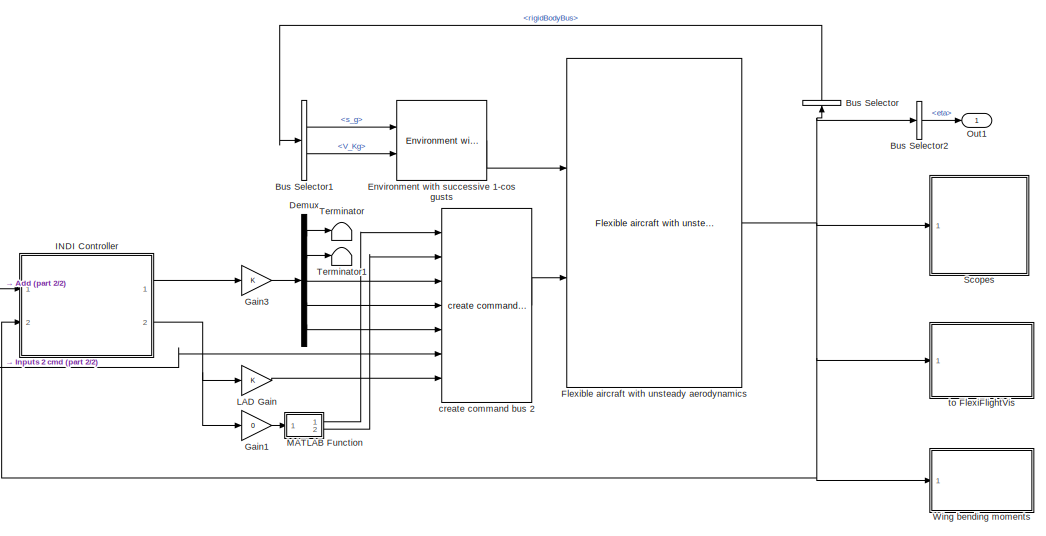
[diagram: root canvas - part 1/2, right side, full height]
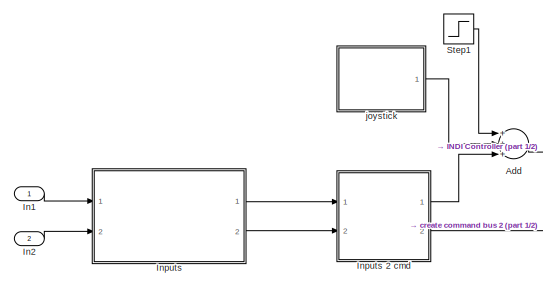
[diagram: root canvas - part 2/2, middle left region]
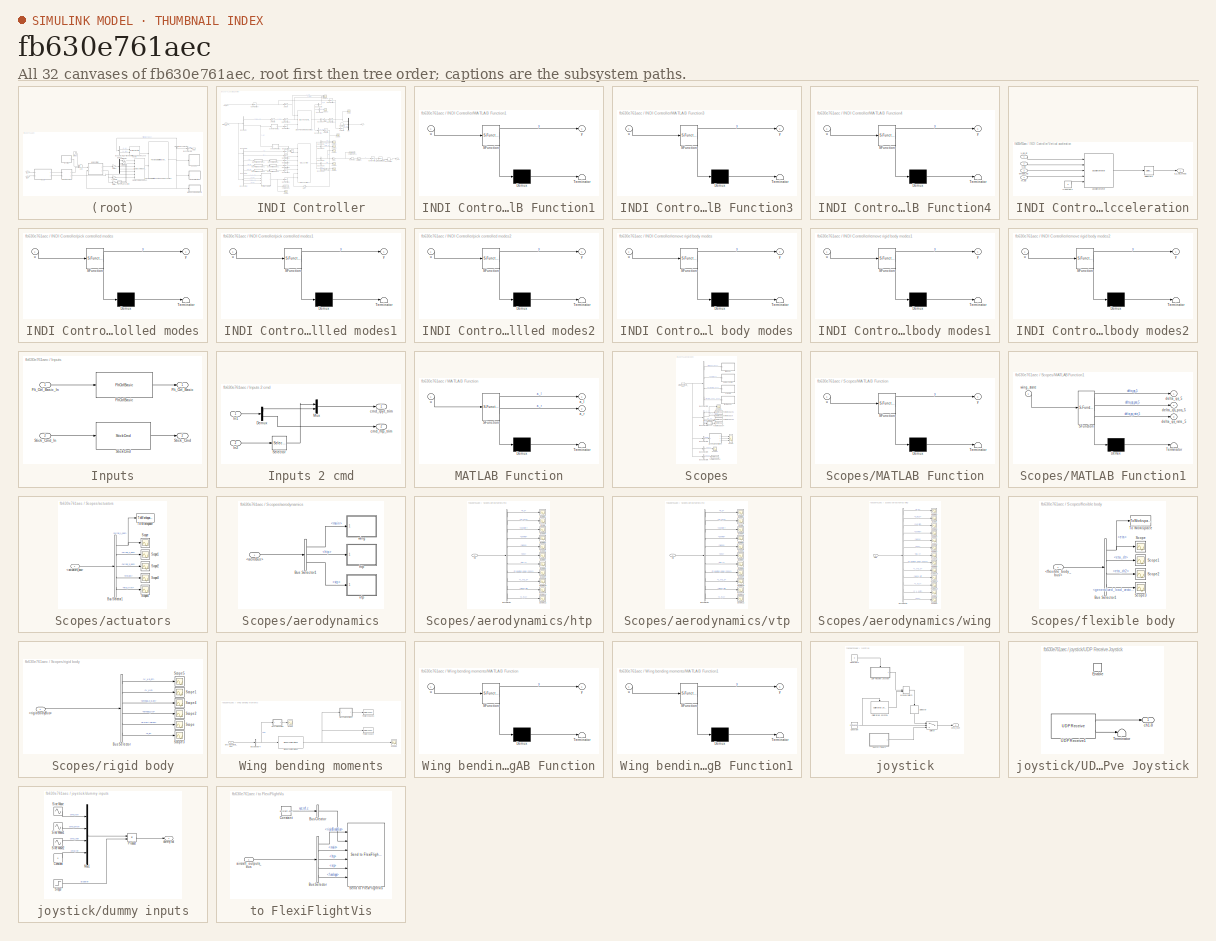
[diagram: thumbnail index - all 32 canvases of the model, root first then tree order]
MODEL slx_fb630e761aec
KIND model
CONFIG AbsTol = 1e-2
CONFIG EnableMultiTasking = off
CONFIG FixedStep = 1/600
CONFIG MaxStep = auto
CONFIG MinStep = auto
CONFIG RelTol = 1e-2
CONFIG SampleTimeConstraint = Unconstrained
CONFIG Solver = ode4
CONFIG SolverName = ode4
CONFIG StartTime = 0.0
CONFIG StopTime = 1000
WORKSPACE source: MAT-file member
WORKSPACE Var = 0
BLOCK [Sum] Add
  InputSameDT = off
  Inputs = +++
  OutDataTypeStr = Inherit: Inherit via internal rule
  Ports = [3, 1]
  SaturateOnIntegerOverflow = off
BLOCK [BusSelector] Bus Selector
  OutputAsBus = off
  OutputSignals = flexible_body_bus.rigidBodyBus
  Ports = [1, 1]
BLOCK [BusSelector] Bus Selector1
  OutputAsBus = off
  OutputSignals = s_g,V_Kg
  Ports = [1, 2]
BLOCK [BusSelector] Bus Selector2
  OutputAsBus = off
  OutputSignals = flexible_body_bus.eta
  Ports = [1, 1]
BLOCK [Demux] Demux
  DisplayOption = bar
  Outputs = 5
  Ports = [1, 5]
BLOCK [Reference] Environment with successive 1-cos gusts  REF=se2a_environment_lib/Environment
with successive 1-cos gusts
  Ports = [2, 1]
  SourceBlock = se2a_environment_lib/Environment\nwith successive 1-cos gusts
  SourceProductName = SE2A library
BLOCK [Reference] Flexible aircraft with unsteady aerodynamics  REF=flight_dynamics_models/Flexible aircraft with unsteady aerodynamics
  Ports = [2, 1]
  SourceBlock = flight_dynamics_models/Flexible aircraft with unsteady aerodynamics
  SourceProductName = SE2A library
BLOCK [Gain] Gain1
  Gain = 0
  OutDataTypeStr = Inherit: Inherit via internal rule
  ParamDataTypeStr = Inherit: Inherit via internal rule
  SaturateOnIntegerOverflow = off
BLOCK [Gain] Gain3
  OutDataTypeStr = Inherit: Inherit via internal rule
  ParamDataTypeStr = Inherit: Inherit via internal rule
  SaturateOnIntegerOverflow = off
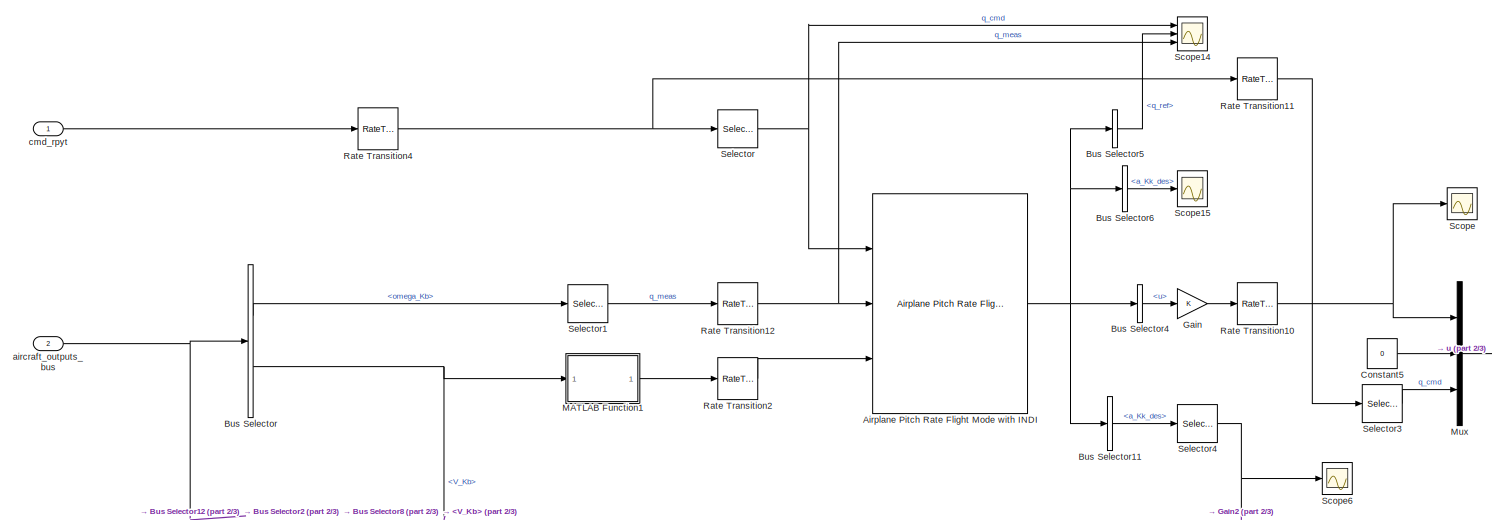
[diagram: INDI Controller - part 1/3, top center region]
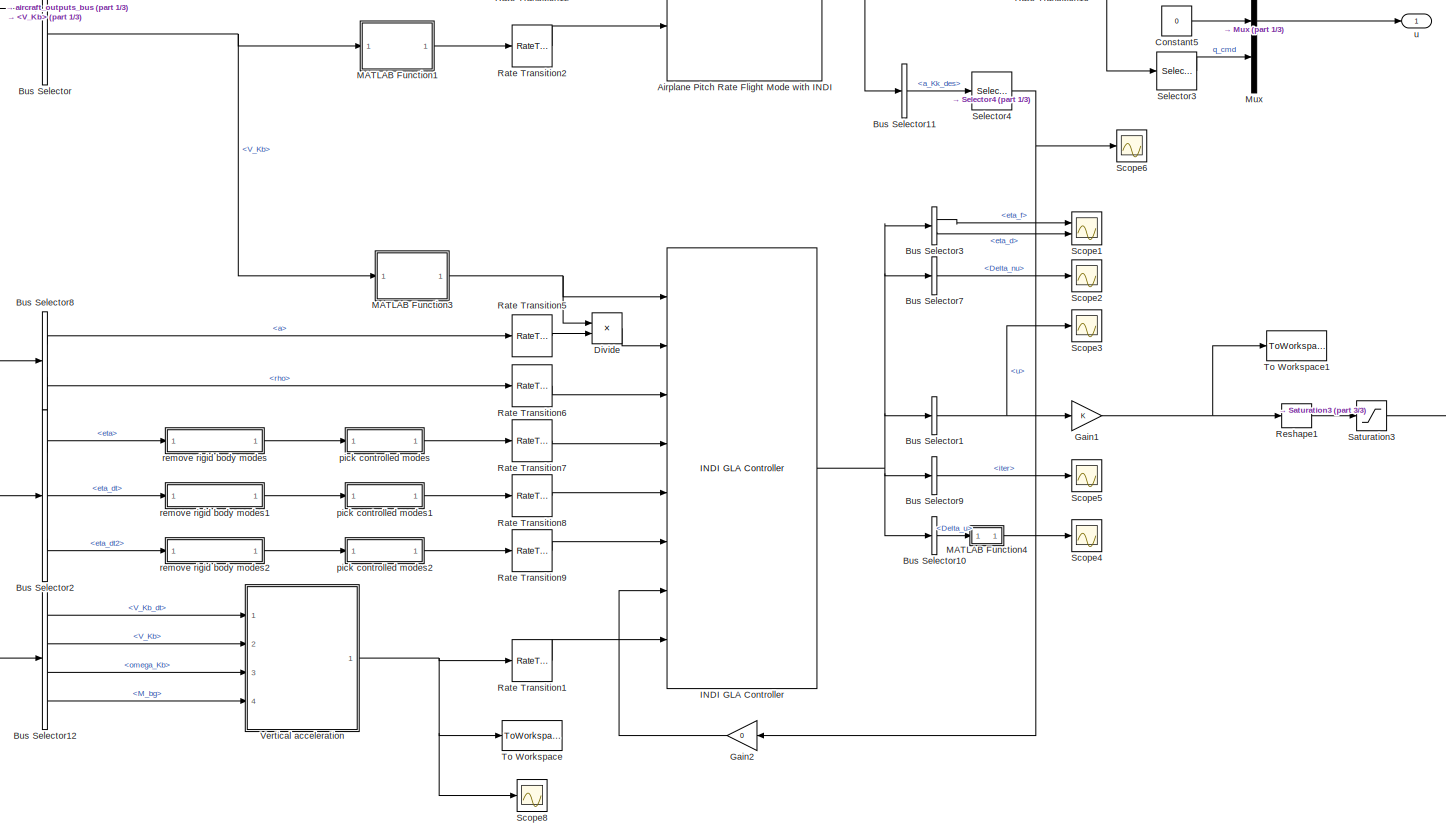
[diagram: INDI Controller - part 2/3, central region]
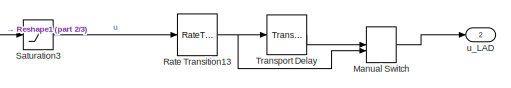
[diagram: INDI Controller - part 3/3, middle right region]
BLOCK [SubSystem] INDI Controller
  Ports = [2, 2]
  RequestExecContextInheritance = off
BLOCK [Reference] INDI Controller/Airplane Pitch Rate Flight Mode with INDI  REF=se2a_controller_lib/Airplane Pitch Rate Flight Mode with INDI
  Ports = [3, 1]
  SourceBlock = se2a_controller_lib/Airplane Pitch Rate Flight Mode with INDI
BLOCK [BusSelector] INDI Controller/Bus Selector
  OutputAsBus = off
  OutputSignals = flexible_body_bus.rigidBodyBus.omega_Kb,flexible_body_bus.rigidBodyBus.V_Kb
  Ports = [1, 2]
BLOCK [BusSelector] INDI Controller/Bus Selector1
  OutputAsBus = off
  OutputSignals = u
  Ports = [1, 1]
BLOCK [BusSelector] INDI Controller/Bus Selector10
  OutputAsBus = off
  OutputSignals = Delta_u
  Ports = [1, 1]
BLOCK [BusSelector] INDI Controller/Bus Selector11
  OutputAsBus = off
  OutputSignals = direct_lift_control.a_Kk_des
  Ports = [1, 1]
BLOCK [BusSelector] INDI Controller/Bus Selector12
  OutputAsBus = off
  OutputSignals = flexible_body_bus.rigidBodyBus.V_Kb_dt,flexible_body_bus.rigidBodyBus.V_Kb,flexible_body_bus.rigidBodyBus.omega_Kb,flexible_body_bus.rigidBodyBus.M_bg
  Ports = [1, 4]
BLOCK [BusSelector] INDI Controller/Bus Selector2
  OutputAsBus = off
  OutputSignals = flexible_body_bus.eta,flexible_body_bus.eta_dt,flexible_body_bus.eta_dt2
  Ports = [1, 3]
BLOCK [BusSelector] INDI Controller/Bus Selector3
  OutputAsBus = off
  OutputSignals = measure.eta_f,desired.eta_d
  Ports = [1, 2]
BLOCK [BusSelector] INDI Controller/Bus Selector4
  OutputAsBus = off
  OutputSignals = u
  Ports = [1, 1]
BLOCK [BusSelector] INDI Controller/Bus Selector5
  OutputAsBus = off
  OutputSignals = pitch_rate_control.reference.q_ref
  Ports = [1, 1]
BLOCK [BusSelector] INDI Controller/Bus Selector6
  OutputAsBus = off
  OutputSignals = direct_lift_control.a_Kk_des
  Ports = [1, 1]
BLOCK [BusSelector] INDI Controller/Bus Selector7
  OutputAsBus = off
  OutputSignals = pseudo_cntrl.Delta_nu
  Ports = [1, 1]
BLOCK [BusSelector] INDI Controller/Bus Selector8
  OutputAsBus = off
  OutputSignals = aeroBus.main.external.atmosphere.a,aeroBus.main.external.atmosphere.rho
  Ports = [1, 2]
BLOCK [BusSelector] INDI Controller/Bus Selector9
  OutputAsBus = off
  OutputSignals = iter
  Ports = [1, 1]
BLOCK [Constant] INDI Controller/Constant5
  Value = 0
BLOCK [Product] INDI Controller/Divide
  InputSameDT = off
  Inputs = */
  OutDataTypeStr = Inherit: Inherit via internal rule
  Ports = [2, 1]
  RndMeth = Floor
  SaturateOnIntegerOverflow = off
BLOCK [Gain] INDI Controller/Gain
  OutDataTypeStr = Inherit: Inherit via internal rule
  ParamDataTypeStr = Inherit: Inherit via internal rule
  SaturateOnIntegerOverflow = off
BLOCK [Gain] INDI Controller/Gain1
  OutDataTypeStr = Inherit: Inherit via internal rule
  ParamDataTypeStr = Inherit: Inherit via internal rule
  SaturateOnIntegerOverflow = off
BLOCK [Gain] INDI Controller/Gain2
  Gain = 0
  OutDataTypeStr = Inherit: Inherit via internal rule
  ParamDataTypeStr = Inherit: Inherit via internal rule
  SaturateOnIntegerOverflow = off
BLOCK [Reference] INDI Controller/INDI GLA Controller  REF=se2a_controller_lib/INDI GLA Controller
  Ports = [8, 1]
  SourceBlock = se2a_controller_lib/INDI GLA Controller
BLOCK [SubSystem] INDI Controller/MATLAB Function1
  ErrorFcn = Stateflow.Translate.translate
  PermitHierarchicalResolution = ExplicitOnly
  Ports = [1, 1]
  RequestExecContextInheritance = off
  SFBlockType = MATLAB Function
  TreatAsAtomicUnit = on
BLOCK [Demux] INDI Controller/MATLAB Function1/ Demux 
  Outputs = 1
  Ports = [1, 1]
BLOCK [S-Function] INDI Controller/MATLAB Function1/ SFunction 
  EnableBusSupport = on
  FunctionName = sf_sfun
  PortCounts = [1 2]
  Ports = [1, 2]
  SFcnIsStateOwnerBlock = off
  SFunctionDeploymentMode = off
  Tag = Stateflow S-Function sim_flexible_unsteady_indi 7
BLOCK [Terminator] INDI Controller/MATLAB Function1/ Terminator 
BLOCK [Inport] INDI Controller/MATLAB Function1/u
  IconDisplay = Port number
BLOCK [Outport] INDI Controller/MATLAB Function1/y
  IconDisplay = Port number
BLOCK [SubSystem] INDI Controller/MATLAB Function3
  ErrorFcn = Stateflow.Translate.translate
  PermitHierarchicalResolution = ExplicitOnly
  Ports = [1, 1]
  RequestExecContextInheritance = off
  SFBlockType = MATLAB Function
  TreatAsAtomicUnit = on
BLOCK [Demux] INDI Controller/MATLAB Function3/ Demux 
  Outputs = 1
  Ports = [1, 1]
BLOCK [S-Function] INDI Controller/MATLAB Function3/ SFunction 
  EnableBusSupport = on
  FunctionName = sf_sfun
  PortCounts = [1 2]
  Ports = [1, 2]
  SFcnIsStateOwnerBlock = off
  SFunctionDeploymentMode = off
  Tag = Stateflow S-Function sim_flexible_unsteady_indi 2
BLOCK [Terminator] INDI Controller/MATLAB Function3/ Terminator 
BLOCK [Inport] INDI Controller/MATLAB Function3/u
  IconDisplay = Port number
BLOCK [Outport] INDI Controller/MATLAB Function3/y
  IconDisplay = Port number
BLOCK [SubSystem] INDI Controller/MATLAB Function4
  ErrorFcn = Stateflow.Translate.translate
  PermitHierarchicalResolution = ExplicitOnly
  Ports = [1, 1]
  RequestExecContextInheritance = off
  SFBlockType = MATLAB Function
  TreatAsAtomicUnit = on
BLOCK [Demux] INDI Controller/MATLAB Function4/ Demux 
  Outputs = 1
  Ports = [1, 1]
BLOCK [S-Function] INDI Controller/MATLAB Function4/ SFunction 
  EnableBusSupport = on
  FunctionName = sf_sfun
  PortCounts = [1 2]
  Ports = [1, 2]
  SFcnIsStateOwnerBlock = off
  SFunctionDeploymentMode = off
  Tag = Stateflow S-Function sim_flexible_unsteady_indi 24
BLOCK [Terminator] INDI Controller/MATLAB Function4/ Terminator 
BLOCK [Inport] INDI Controller/MATLAB Function4/u
  IconDisplay = Port number
BLOCK [Outport] INDI Controller/MATLAB Function4/y
  IconDisplay = Port number
BLOCK [ManualSwitch] INDI Controller/Manual Switch
  CurrentSetting = 0
BLOCK [Mux] INDI Controller/Mux
  DisplayOption = bar
  Inputs = 3
  Ports = [3, 1]
BLOCK [RateTransition] INDI Controller/Rate Transition1
BLOCK [RateTransition] INDI Controller/Rate Transition10
BLOCK [RateTransition] INDI Controller/Rate Transition11
BLOCK [RateTransition] INDI Controller/Rate Transition12
BLOCK [RateTransition] INDI Controller/Rate Transition13
BLOCK [RateTransition] INDI Controller/Rate Transition2
BLOCK [RateTransition] INDI Controller/Rate Transition4
BLOCK [RateTransition] INDI Controller/Rate Transition5
BLOCK [RateTransition] INDI Controller/Rate Transition6
BLOCK [RateTransition] INDI Controller/Rate Transition7
BLOCK [RateTransition] INDI Controller/Rate Transition8
BLOCK [RateTransition] INDI Controller/Rate Transition9
BLOCK [Reshape] INDI Controller/Reshape1
  Ports = [1, 1]
BLOCK [Saturate] INDI Controller/Saturation3
  InputPortMap = u0
  LowerLimit = gla_indi.ca.u_min
  Ports = [1, 1]
  UpperLimit = gla_indi.ca.u_max
BLOCK [Scope] INDI Controller/Scope
  Floating = off
  NumInputPorts = 1
  Ports = [1]
  ScopeSpecificationString = Simulink.scopes.TimeScopeBlockCfg('CurrentConfiguration', extmgr.ConfigurationSet(extmgr.Configuration('Core','General UI',true),extmgr.Configuration('Core','Source UI',true),extmgr.Configuration('Sources','WiredSimulink',true,'DataLoggingVariableName','ScopeData6'),extmgr.Configuration('Visuals','Time Domain',true,'SerializedDisplays',{struct('MinYLimReal','-1.18139','MaxYLimReal','0.64368','YLab...<+1579ch>
BLOCK [Scope] INDI Controller/Scope1
  Floating = off
  NumInputPorts = 2
  Ports = [2]
  ScopeSpecificationString = Simulink.scopes.TimeScopeBlockCfg('CurrentConfiguration', extmgr.ConfigurationSet(extmgr.Configuration('Core','General UI',true),extmgr.Configuration('Core','Source UI',true),extmgr.Configuration('Sources','WiredSimulink',true,'DataLoggingVariableName','ScopeData1'),extmgr.Configuration('Visuals','Time Domain',true,'SerializedDisplays',{struct('MinYLimReal','-0.09698','MaxYLimReal','0.06631','YLab...<+2504ch>
BLOCK [Scope] INDI Controller/Scope14
  Floating = off
  NumInputPorts = 3
  Ports = [3]
  ScopeSpecificationString = Simulink.scopes.TimeScopeBlockCfg('CurrentConfiguration', extmgr.ConfigurationSet(extmgr.Configuration('Core','General UI',true),extmgr.Configuration('Core','Source UI',true),extmgr.Configuration('Sources','WiredSimulink',true,'DataLoggingVariableName','ScopeData1'),extmgr.Configuration('Visuals','Time Domain',true,'SerializedDisplays',{struct('MinYLimReal','-0.00703','MaxYLimReal','0.06133','YLab...<+1561ch>
BLOCK [Scope] INDI Controller/Scope15
  Floating = off
  NumInputPorts = 1
  Ports = [1]
  ScopeSpecificationString = Simulink.scopes.TimeScopeBlockCfg('CurrentConfiguration', extmgr.ConfigurationSet(extmgr.Configuration('Core','General UI',true),extmgr.Configuration('Core','Source UI',true),extmgr.Configuration('Sources','WiredSimulink',true,'DataLoggingVariableName','ScopeData2'),extmgr.Configuration('Visuals','Time Domain',true,'SerializedDisplays',{struct('MinYLimReal','-8.37501','MaxYLimReal','3.10021','YLab...<+1772ch>
BLOCK [Scope] INDI Controller/Scope2
  Floating = off
  NumInputPorts = 1
  Ports = [1]
  ScopeSpecificationString = Simulink.scopes.TimeScopeBlockCfg('CurrentConfiguration', extmgr.ConfigurationSet(extmgr.Configuration('Core','General UI',true),extmgr.Configuration('Core','Source UI',true),extmgr.Configuration('Sources','WiredSimulink',true,'DataLoggingVariableName','ScopeData1'),extmgr.Configuration('Visuals','Time Domain',true,'SerializedDisplays',{struct('MinYLimReal','-256.00386','MaxYLimReal','286.13152','...<+1869ch>
BLOCK [Scope] INDI Controller/Scope3
  Floating = off
  NumInputPorts = 1
  Ports = [1]
  ScopeSpecificationString = Simulink.scopes.TimeScopeBlockCfg('CurrentConfiguration', extmgr.ConfigurationSet(extmgr.Configuration('Core','General UI',true),extmgr.Configuration('Core','Source UI',true),extmgr.Configuration('Sources','WiredSimulink',true,'DataLoggingVariableName','ScopeData2'),extmgr.Configuration('Visuals','Time Domain',true,'SerializedDisplays',{struct('MinYLimReal','-0.59454','MaxYLimReal','0.23815','YLab...<+2687ch>
BLOCK [Scope] INDI Controller/Scope4
  Floating = off
  NumInputPorts = 1
  Ports = [1]
  ScopeSpecificationString = Simulink.scopes.TimeScopeBlockCfg('CurrentConfiguration', extmgr.ConfigurationSet(extmgr.Configuration('Core','General UI',true),extmgr.Configuration('Core','Source UI',true),extmgr.Configuration('Sources','WiredSimulink',true,'DataLoggingVariableName','ScopeData2'),extmgr.Configuration('Visuals','Time Domain',true,'SerializedDisplays',{struct('MinYLimReal','-0.04419','MaxYLimReal','0.0445','YLabe...<+1452ch>
BLOCK [Scope] INDI Controller/Scope5
  Floating = off
  NumInputPorts = 1
  Ports = [1]
  ScopeSpecificationString = Simulink.scopes.TimeScopeBlockCfg('CurrentConfiguration', extmgr.ConfigurationSet(extmgr.Configuration('Core','General UI',true),extmgr.Configuration('Core','Source UI',true),extmgr.Configuration('Sources','WiredSimulink',true,'DataLoggingVariableName','ScopeData4'),extmgr.Configuration('Visuals','Time Domain',true,'SerializedDisplays',{struct('MinYLimReal','0.9','MaxYLimReal','1.1','YLabelReal','...<+1412ch>
BLOCK [Scope] INDI Controller/Scope6
  Floating = off
  NumInputPorts = 1
  Ports = [1]
  ScopeSpecificationString = Simulink.scopes.TimeScopeBlockCfg('CurrentConfiguration', extmgr.ConfigurationSet(extmgr.Configuration('Core','General UI',true),extmgr.Configuration('Core','Source UI',true),extmgr.Configuration('Sources','WiredSimulink',true,'DataLoggingVariableName','ScopeData1'),extmgr.Configuration('Visuals','Time Domain',true,'SerializedDisplays',{struct('MinYLimReal','-1.00000','MaxYLimReal','1.00000','YLab...<+1449ch>
BLOCK [Scope] INDI Controller/Scope8
  Floating = off
  NumInputPorts = 1
  Ports = [1]
  ScopeSpecificationString = Simulink.scopes.TimeScopeBlockCfg('CurrentConfiguration', extmgr.ConfigurationSet(extmgr.Configuration('Core','General UI',true),extmgr.Configuration('Core','Source UI',true),extmgr.Configuration('Sources','WiredSimulink',true,'DataLoggingVariableName','ScopeData1'),extmgr.Configuration('Visuals','Time Domain',true,'SerializedDisplays',{struct('MinYLimReal','-8.37218','MaxYLimReal','3.1003','YLabe...<+1447ch>
BLOCK [Selector] INDI Controller/Selector
  IndexOptions = Index vector (dialog)
  Indices = 2
  InputPortWidth = 4
  OutputSizes = 1
  Ports = [1, 1]
BLOCK [Selector] INDI Controller/Selector1
  IndexOptions = Index vector (dialog)
  Indices = 2
  InputPortWidth = 3
  OutputSizes = 1
  Ports = [1, 1]
BLOCK [Selector] INDI Controller/Selector3
  IndexOptions = Index vector (dialog)
  Indices = 4
  InputPortWidth = 4
  OutputSizes = 1
  Ports = [1, 1]
BLOCK [Selector] INDI Controller/Selector4
  IndexOptions = Index vector (dialog)
  Indices = 3
  InputPortWidth = 3
  OutputSizes = 1
  Ports = [1, 1]
BLOCK [ToWorkspace] INDI Controller/To Workspace
  FixptAsFi = on
  MaxDataPoints = inf
  Ports = [1]
  SampleTime = -1
  Save2DSignal = 3-D array (concatenate along third dimension)
  SaveFormat = Timeseries
  VariableName = acc
BLOCK [ToWorkspace] INDI Controller/To Workspace1
  FixptAsFi = on
  MaxDataPoints = inf
  Ports = [1]
  SampleTime = -1
  Save2DSignal = 3-D array (concatenate along third dimension)
  SaveFormat = Timeseries
  VariableName = u
BLOCK [TransportDelay] INDI Controller/Transport Delay
  DelayTime = gla_indi.ts
  Ports = [1, 1]
  TransDelayFeedthrough = on
BLOCK [SubSystem] INDI Controller/Vertical acceleration
  Ports = [4, 1]
  RequestExecContextInheritance = off
BLOCK [Constant] INDI Controller/Vertical acceleration/Constant1
  Value = 0
  VectorParams1D = off
BLOCK [Inport] INDI Controller/Vertical acceleration/M_bg
  IconDisplay = Port number
  Port = 4
BLOCK [Selector] INDI Controller/Vertical acceleration/Selector5
  IndexOptions = Index vector (dialog)
  Indices = 3
  InputPortWidth = 3
  OutputSizes = 1
  Ports = [1, 1]
BLOCK [Inport] INDI Controller/Vertical acceleration/V_Kb
  IconDisplay = Port number
  Port = 2
BLOCK [Inport] INDI Controller/Vertical acceleration/V_Kb_dt
  IconDisplay = Port number
BLOCK [Outport] INDI Controller/Vertical acceleration/a_z_Kb_meas
  IconDisplay = Port number
BLOCK [Reference] INDI Controller/Vertical acceleration/accelerometer  REF=sensors_lib/accelerometer  (lib defined in mdl_052e9be48c24, mdl_88e42053cf8c, +1 more)
  Ports = [5, 1]
  SourceBlock = sensors_lib/accelerometer
  SourceProductName = LADAC
  SourceType = SubSystem
BLOCK [Inport] INDI Controller/Vertical acceleration/omega_Kb
  IconDisplay = Port number
  Port = 3
BLOCK [Inport] INDI Controller/aircraft_outputs_bus
  IconDisplay = Port number
  Port = 2
BLOCK [Inport] INDI Controller/cmd_rpyt
  IconDisplay = Port number
BLOCK [SubSystem] INDI Controller/pick controlled modes
  ErrorFcn = Stateflow.Translate.translate
  PermitHierarchicalResolution = ExplicitOnly
  Ports = [1, 1]
  RequestExecContextInheritance = off
  SFBlockType = MATLAB Function
  TreatAsAtomicUnit = on
BLOCK [Demux] INDI Controller/pick controlled modes/ Demux 
  Outputs = 1
  Ports = [1, 1]
BLOCK [S-Function] INDI Controller/pick controlled modes/ SFunction 
  EnableBusSupport = on
  FunctionName = sf_sfun
  Parameters = gla_indi
  PortCounts = [1 2]
  Ports = [1, 2]
  SFcnIsStateOwnerBlock = off
  SFunctionDeploymentMode = off
  Tag = Stateflow S-Function sim_flexible_unsteady_indi 12
BLOCK [Terminator] INDI Controller/pick controlled modes/ Terminator 
BLOCK [Inport] INDI Controller/pick controlled modes/u
  IconDisplay = Port number
BLOCK [Outport] INDI Controller/pick controlled modes/y
  IconDisplay = Port number
BLOCK [SubSystem] INDI Controller/pick controlled modes1
  ErrorFcn = Stateflow.Translate.translate
  PermitHierarchicalResolution = ExplicitOnly
  Ports = [1, 1]
  RequestExecContextInheritance = off
  SFBlockType = MATLAB Function
  TreatAsAtomicUnit = on
BLOCK [Demux] INDI Controller/pick controlled modes1/ Demux 
  Outputs = 1
  Ports = [1, 1]
BLOCK [S-Function] INDI Controller/pick controlled modes1/ SFunction 
  EnableBusSupport = on
  FunctionName = sf_sfun
  Parameters = gla_indi
  PortCounts = [1 2]
  Ports = [1, 2]
  SFcnIsStateOwnerBlock = off
  SFunctionDeploymentMode = off
  Tag = Stateflow S-Function sim_flexible_unsteady_indi 1
BLOCK [Terminator] INDI Controller/pick controlled modes1/ Terminator 
BLOCK [Inport] INDI Controller/pick controlled modes1/u
  IconDisplay = Port number
BLOCK [Outport] INDI Controller/pick controlled modes1/y
  IconDisplay = Port number
BLOCK [SubSystem] INDI Controller/pick controlled modes2
  ErrorFcn = Stateflow.Translate.translate
  PermitHierarchicalResolution = ExplicitOnly
  Ports = [1, 1]
  RequestExecContextInheritance = off
  SFBlockType = MATLAB Function
  TreatAsAtomicUnit = on
BLOCK [Demux] INDI Controller/pick controlled modes2/ Demux 
  Outputs = 1
  Ports = [1, 1]
BLOCK [S-Function] INDI Controller/pick controlled modes2/ SFunction 
  EnableBusSupport = on
  FunctionName = sf_sfun
  Parameters = gla_indi
  PortCounts = [1 2]
  Ports = [1, 2]
  SFcnIsStateOwnerBlock = off
  SFunctionDeploymentMode = off
  Tag = Stateflow S-Function sim_flexible_unsteady_indi 3
BLOCK [Terminator] INDI Controller/pick controlled modes2/ Terminator 
BLOCK [Inport] INDI Controller/pick controlled modes2/u
  IconDisplay = Port number
BLOCK [Outport] INDI Controller/pick controlled modes2/y
  IconDisplay = Port number
BLOCK [SubSystem] INDI Controller/remove rigid body modes
  ErrorFcn = Stateflow.Translate.translate
  PermitHierarchicalResolution = ExplicitOnly
  Ports = [1, 1]
  RequestExecContextInheritance = off
  SFBlockType = MATLAB Function
  TreatAsAtomicUnit = on
BLOCK [Demux] INDI Controller/remove rigid body modes/ Demux 
  Outputs = 1
  Ports = [1, 1]
BLOCK [S-Function] INDI Controller/remove rigid body modes/ SFunction 
  EnableBusSupport = on
  FunctionName = sf_sfun
  PortCounts = [1 2]
  Ports = [1, 2]
  SFcnIsStateOwnerBlock = off
  SFunctionDeploymentMode = off
  Tag = Stateflow S-Function sim_flexible_unsteady_indi 5
BLOCK [Terminator] INDI Controller/remove rigid body modes/ Terminator 
BLOCK [Inport] INDI Controller/remove rigid body modes/u
  IconDisplay = Port number
BLOCK [Outport] INDI Controller/remove rigid body modes/y
  IconDisplay = Port number
BLOCK [SubSystem] INDI Controller/remove rigid body modes1
  ErrorFcn = Stateflow.Translate.translate
  PermitHierarchicalResolution = ExplicitOnly
  Ports = [1, 1]
  RequestExecContextInheritance = off
  SFBlockType = MATLAB Function
  TreatAsAtomicUnit = on
BLOCK [Demux] INDI Controller/remove rigid body modes1/ Demux 
  Outputs = 1
  Ports = [1, 1]
BLOCK [S-Function] INDI Controller/remove rigid body modes1/ SFunction 
  EnableBusSupport = on
  FunctionName = sf_sfun
  PortCounts = [1 2]
  Ports = [1, 2]
  SFcnIsStateOwnerBlock = off
  SFunctionDeploymentMode = off
  Tag = Stateflow S-Function sim_flexible_unsteady_indi 6
BLOCK [Terminator] INDI Controller/remove rigid body modes1/ Terminator 
BLOCK [Inport] INDI Controller/remove rigid body modes1/u
  IconDisplay = Port number
BLOCK [Outport] INDI Controller/remove rigid body modes1/y
  IconDisplay = Port number
BLOCK [SubSystem] INDI Controller/remove rigid body modes2
  ErrorFcn = Stateflow.Translate.translate
  PermitHierarchicalResolution = ExplicitOnly
  Ports = [1, 1]
  RequestExecContextInheritance = off
  SFBlockType = MATLAB Function
  TreatAsAtomicUnit = on
BLOCK [Demux] INDI Controller/remove rigid body modes2/ Demux 
  Outputs = 1
  Ports = [1, 1]
BLOCK [S-Function] INDI Controller/remove rigid body modes2/ SFunction 
  EnableBusSupport = on
  FunctionName = sf_sfun
  PortCounts = [1 2]
  Ports = [1, 2]
  SFcnIsStateOwnerBlock = off
  SFunctionDeploymentMode = off
  Tag = Stateflow S-Function sim_flexible_unsteady_indi 8
BLOCK [Terminator] INDI Controller/remove rigid body modes2/ Terminator 
BLOCK [Inport] INDI Controller/remove rigid body modes2/u
  IconDisplay = Port number
BLOCK [Outport] INDI Controller/remove rigid body modes2/y
  IconDisplay = Port number
BLOCK [Outport] INDI Controller/u
  IconDisplay = Port number
BLOCK [Outport] INDI Controller/u_LAD
  IconDisplay = Port number
  Port = 2
BLOCK [Inport] In1
  IconDisplay = Port number
BLOCK [Inport] In2
  IconDisplay = Port number
  Port = 2
BLOCK [SubSystem] Inputs
  Ports = [2, 2]
  RequestExecContextInheritance = off
BLOCK [SubSystem] Inputs 2 cmd
  Ports = [2, 2]
  RequestExecContextInheritance = off
BLOCK [Demux] Inputs 2 cmd/Demux
  DisplayOption = bar
  Outputs = 2
  Ports = [1, 2]
BLOCK [Inport] Inputs 2 cmd/In1
  IconDisplay = Port number
BLOCK [Inport] Inputs 2 cmd/In2
  IconDisplay = Port number
  Port = 2
BLOCK [Mux] Inputs 2 cmd/Mux
  DisplayOption = bar
  Inputs = 2
  Ports = [2, 1]
BLOCK [Selector] Inputs 2 cmd/Selector
  IndexOptions = Index vector (dialog)
  Indices = 1:3
  InputPortWidth = 4
  OutputSizes = 1
  Ports = [1, 1]
BLOCK [Outport] Inputs 2 cmd/cmd_htp_trim
  IconDisplay = Port number
  Port = 2
BLOCK [Outport] Inputs 2 cmd/cmd_rpyt_trim
  IconDisplay = Port number
BLOCK [Reference] Inputs/FltCtrlBasic  REF=InputBlocks_library/FltCtrlBasic
  Ports = [1, 1]
  SourceBlock = InputBlocks_library/FltCtrlBasic
  SourceType = SubSystem
BLOCK [Outport] Inputs/Flt_Ctrl_Basic
  IconDisplay = Port number
BLOCK [Inport] Inputs/Flt_Ctrl_Basic_In
  IconDisplay = Port number
BLOCK [Reference] Inputs/StickCmd  REF=InputBlocks_library/StickCmd
  Ports = [1, 1]
  SourceBlock = InputBlocks_library/StickCmd
  SourceType = SubSystem
BLOCK [Outport] Inputs/Stick_Cmd
  IconDisplay = Port number
  Port = 2
BLOCK [Inport] Inputs/Stick_Cmd_In
  IconDisplay = Port number
  Port = 2
BLOCK [Gain] LAD Gain
  OutDataTypeStr = Inherit: Inherit via internal rule
  ParamDataTypeStr = Inherit: Inherit via internal rule
  SaturateOnIntegerOverflow = off
BLOCK [SubSystem] MATLAB Function
  ErrorFcn = Stateflow.Translate.translate
  PermitHierarchicalResolution = ExplicitOnly
  Ports = [1, 2]
  RequestExecContextInheritance = off
  SFBlockType = MATLAB Function
  TreatAsAtomicUnit = on
BLOCK [Demux] MATLAB Function/ Demux 
  Outputs = 1
  Ports = [1, 1]
BLOCK [S-Function] MATLAB Function/ SFunction 
  EnableBusSupport = on
  FunctionName = sf_sfun
  PortCounts = [1 3]
  Ports = [1, 3]
  SFcnIsStateOwnerBlock = off
  SFunctionDeploymentMode = off
  Tag = Stateflow S-Function sim_flexible_unsteady_indi 17
BLOCK [Terminator] MATLAB Function/ Terminator 
BLOCK [Outport] MATLAB Function/a_l
  IconDisplay = Port number
BLOCK [Outport] MATLAB Function/a_r
  IconDisplay = Port number
  Port = 2
BLOCK [Inport] MATLAB Function/u
  IconDisplay = Port number
BLOCK [Outport] Out1
  IconDisplay = Port number
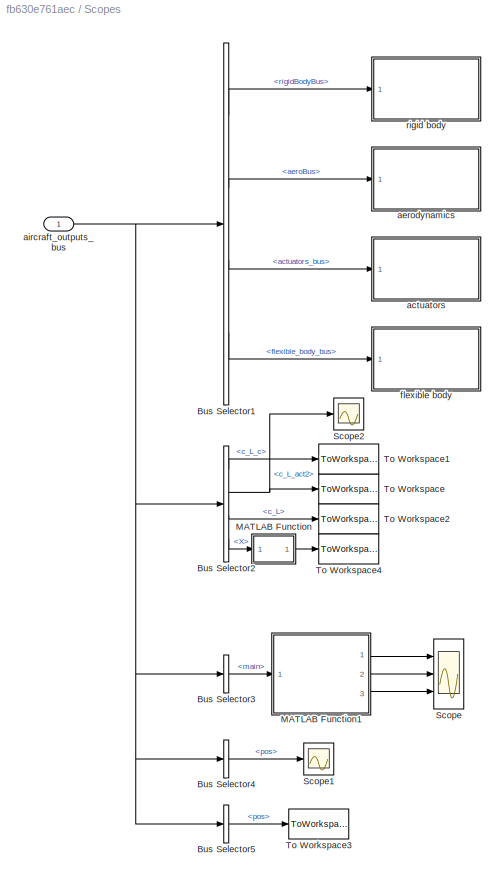
BLOCK [SubSystem] Scopes
  Ports = [1]
  RequestExecContextInheritance = off
BLOCK [BusSelector] Scopes/Bus Selector1
  OutputAsBus = off
  OutputSignals = flexible_body_bus.rigidBodyBus,aeroBus,actuators_bus,flexible_body_bus
  Ports = [1, 4]
BLOCK [BusSelector] Scopes/Bus Selector2
  OutputAsBus = off
  OutputSignals = aeroBus.main.aero.unsteady.c_L_c,aeroBus.main.aero.unsteady.c_L_act2,aeroBus.main.aero.circulation.c_L,aeroBus.main.aero.unsteady.X
  Ports = [1, 4]
BLOCK [BusSelector] Scopes/Bus Selector3
  OutputAsBus = off
  OutputSignals = aeroBus.main
  Ports = [1, 1]
BLOCK [BusSelector] Scopes/Bus Selector4
  OutputAsBus = off
  OutputSignals = aeroBus.main.actuators.pos
  Ports = [1, 1]
BLOCK [BusSelector] Scopes/Bus Selector5
  OutputAsBus = off
  OutputSignals = aeroBus.main.geometry.line_25.pos
  Ports = [1, 1]
BLOCK [SubSystem] Scopes/MATLAB Function
  ErrorFcn = Stateflow.Translate.translate
  PermitHierarchicalResolution = ExplicitOnly
  Ports = [1, 1]
  RequestExecContextInheritance = off
  SFBlockType = MATLAB Function
  TreatAsAtomicUnit = on
BLOCK [Demux] Scopes/MATLAB Function/ Demux 
  Outputs = 1
  Ports = [1, 1]
BLOCK [S-Function] Scopes/MATLAB Function/ SFunction 
  EnableBusSupport = on
  FunctionName = sf_sfun
  PortCounts = [1 2]
  Ports = [1, 2]
  SFcnIsStateOwnerBlock = off
  SFunctionDeploymentMode = off
  Tag = Stateflow S-Function sim_flexible_unsteady_indi 11
BLOCK [Terminator] Scopes/MATLAB Function/ Terminator 
BLOCK [Inport] Scopes/MATLAB Function/u
  IconDisplay = Port number
BLOCK [Outport] Scopes/MATLAB Function/y
  IconDisplay = Port number
BLOCK [SubSystem] Scopes/MATLAB Function1
  ErrorFcn = Stateflow.Translate.translate
  PermitHierarchicalResolution = ExplicitOnly
  Ports = [1, 3]
  RequestExecContextInheritance = off
  SFBlockType = MATLAB Function
  TreatAsAtomicUnit = on
BLOCK [Demux] Scopes/MATLAB Function1/ Demux 
  Outputs = 1
  Ports = [1, 1]
BLOCK [S-Function] Scopes/MATLAB Function1/ SFunction 
  EnableBusSupport = on
  FunctionName = sf_sfun
  PortCounts = [1 4]
  Ports = [1, 4]
  SFcnIsStateOwnerBlock = off
  SFunctionDeploymentMode = off
  Tag = Stateflow S-Function sim_flexible_unsteady_indi 4
BLOCK [Terminator] Scopes/MATLAB Function1/ Terminator 
BLOCK [Outport] Scopes/MATLAB Function1/delta_qs_5
  IconDisplay = Port number
BLOCK [Outport] Scopes/MATLAB Function1/delta_qs_pos_5
  IconDisplay = Port number
  Port = 2
BLOCK [Outport] Scopes/MATLAB Function1/delta_qs_rate_5
  IconDisplay = Port number
  Port = 3
BLOCK [Inport] Scopes/MATLAB Function1/wing_state
  IconDisplay = Port number
BLOCK [Scope] Scopes/Scope
  Floating = off
  NumInputPorts = 3
  Ports = [3]
  ScopeSpecificationString = Simulink.scopes.TimeScopeBlockCfg('CurrentConfiguration', extmgr.ConfigurationSet(extmgr.Configuration('Core','General UI',true),extmgr.Configuration('Core','Source UI',true),extmgr.Configuration('Sources','WiredSimulink',true,'DataLoggingVariableName','ScopeData1'),extmgr.Configuration('Visuals','Time Domain',true,'SerializedDisplays',{struct('MinYLimReal','-0.00202','MaxYLimReal','0.00055','YLab...<+2305ch>
BLOCK [Scope] Scopes/Scope1
  Floating = off
  NumInputPorts = 1
  Ports = [1]
  ScopeSpecificationString = Simulink.scopes.TimeScopeBlockCfg('CurrentConfiguration', extmgr.ConfigurationSet(extmgr.Configuration('Core','General UI',true),extmgr.Configuration('Core','Source UI',true),extmgr.Configuration('Sources','WiredSimulink',true,'DataLoggingVariableName','ScopeData1'),extmgr.Configuration('Visuals','Time Domain',true,'SerializedDisplays',{struct('MinYLimReal','-1.25','MaxYLimReal','1.25','YLabelReal...<+2266ch>
BLOCK [Scope] Scopes/Scope2
  Floating = off
  NumInputPorts = 1
  Ports = [1]
  ScopeSpecificationString = Simulink.scopes.TimeScopeBlockCfg('CurrentConfiguration', extmgr.ConfigurationSet(extmgr.Configuration('Core','General UI',true),extmgr.Configuration('Core','Source UI',true),extmgr.Configuration('Sources','WiredSimulink',true,'DataLoggingVariableName','ScopeData2'),extmgr.Configuration('Visuals','Time Domain',true,'SerializedDisplays',{struct('MinYLimReal','-0.11833','MaxYLimReal','0.27217','YLab...<+2088ch>
BLOCK [ToWorkspace] Scopes/To Workspace
  FixptAsFi = on
  MaxDataPoints = inf
  Ports = [1]
  SampleTime = -1
  Save2DSignal = 3-D array (concatenate along third dimension)
  SaveFormat = Timeseries
  VariableName = c_L_act2
BLOCK [ToWorkspace] Scopes/To Workspace1
  FixptAsFi = on
  MaxDataPoints = inf
  Ports = [1]
  SampleTime = -1
  Save2DSignal = 3-D array (concatenate along third dimension)
  SaveFormat = Timeseries
  VariableName = simout1
BLOCK [ToWorkspace] Scopes/To Workspace2
  FixptAsFi = on
  MaxDataPoints = inf
  Ports = [1]
  SampleTime = -1
  Save2DSignal = 3-D array (concatenate along third dimension)
  SaveFormat = Timeseries
  VariableName = c_L
BLOCK [ToWorkspace] Scopes/To Workspace3
  FixptAsFi = on
  MaxDataPoints = inf
  Ports = [1]
  SampleTime = -1
  Save2DSignal = 3-D array (concatenate along third dimension)
  SaveFormat = Timeseries
  VariableName = wing_line25_pos
BLOCK [ToWorkspace] Scopes/To Workspace4
  FixptAsFi = on
  MaxDataPoints = inf
  Ports = [1]
  SampleTime = -1
  Save2DSignal = 3-D array (concatenate along third dimension)
  SaveFormat = Timeseries
  VariableName = x_f
BLOCK [SubSystem] Scopes/actuators
  Ports = [1]
  RequestExecContextInheritance = off
BLOCK [Inport] Scopes/actuators/<actuators_bus>
  IconDisplay = Port number
BLOCK [BusSelector] Scopes/actuators/Bus Selector1
  OutputAsBus = off
  OutputSignals = wing_1_pos,wing_2_pos,wing_3_pos,thrust,htp_trim
  Ports = [1, 5]
BLOCK [Scope] Scopes/actuators/Scope
  Floating = off
  NumInputPorts = 1
  Ports = [1]
  ScopeSpecificationString = Simulink.scopes.TimeScopeBlockCfg('CurrentConfiguration', extmgr.ConfigurationSet(extmgr.Configuration('Core','General UI',true),extmgr.Configuration('Core','Source UI',true),extmgr.Configuration('Sources','WiredSimulink',true,'DataLoggingVariableName','ScopeData1'),extmgr.Configuration('Visuals','Time Domain',true,'SerializedDisplays',{struct('MinYLimReal','-0.2232','MaxYLimReal','0.04118','YLabe...<+2822ch>
BLOCK [Scope] Scopes/actuators/Scope1
  Floating = off
  NumInputPorts = 1
  Ports = [1]
  ScopeSpecificationString = Simulink.scopes.TimeScopeBlockCfg('CurrentConfiguration', extmgr.ConfigurationSet(extmgr.Configuration('Core','General UI',true),extmgr.Configuration('Core','Source UI',true),extmgr.Configuration('Sources','WiredSimulink',true,'DataLoggingVariableName','ScopeData2'),extmgr.Configuration('Visuals','Time Domain',true,'SerializedDisplays',{struct('MinYLimReal','-0.69641','MaxYLimReal','0.31425','YLab...<+1452ch>
BLOCK [Scope] Scopes/actuators/Scope2
  Floating = off
  NumInputPorts = 1
  Ports = [1]
  ScopeSpecificationString = Simulink.scopes.TimeScopeBlockCfg('CurrentConfiguration', extmgr.ConfigurationSet(extmgr.Configuration('Core','General UI',true),extmgr.Configuration('Core','Source UI',true),extmgr.Configuration('Sources','WiredSimulink',true,'DataLoggingVariableName','ScopeData3'),extmgr.Configuration('Visuals','Time Domain',true),extmgr.Configuration('Tools','Plot Navigation',true),extmgr.Configuration('Tools',...<+40ch>
BLOCK [Scope] Scopes/actuators/Scope3
  Floating = off
  NumInputPorts = 1
  Ports = [1]
  ScopeSpecificationString = Simulink.scopes.TimeScopeBlockCfg('CurrentConfiguration', extmgr.ConfigurationSet(extmgr.Configuration('Core','General UI',true),extmgr.Configuration('Core','Source UI',true),extmgr.Configuration('Sources','WiredSimulink',true,'DataLoggingVariableName','ScopeData4'),extmgr.Configuration('Visuals','Time Domain',true),extmgr.Configuration('Tools','Plot Navigation',true),extmgr.Configuration('Tools',...<+40ch>
BLOCK [Scope] Scopes/actuators/Scope4
  Floating = off
  NumInputPorts = 1
  Ports = [1]
  ScopeSpecificationString = Simulink.scopes.TimeScopeBlockCfg('CurrentConfiguration', extmgr.ConfigurationSet(extmgr.Configuration('Core','General UI',true),extmgr.Configuration('Core','Source UI',true),extmgr.Configuration('Sources','WiredSimulink',true,'DataLoggingVariableName','ScopeData5'),extmgr.Configuration('Visuals','Time Domain',true),extmgr.Configuration('Tools','Plot Navigation',true),extmgr.Configuration('Tools',...<+40ch>
BLOCK [ToWorkspace] Scopes/actuators/To Workspace
  FixptAsFi = on
  MaxDataPoints = inf
  Ports = [1]
  SampleTime = -1
  Save2DSignal = 3-D array (concatenate along third dimension)
  SaveFormat = Timeseries
  VariableName = act
BLOCK [SubSystem] Scopes/aerodynamics
  Ports = [1]
  RequestExecContextInheritance = off
BLOCK [Inport] Scopes/aerodynamics/<aeroBus>
  IconDisplay = Port number
BLOCK [BusSelector] Scopes/aerodynamics/Bus Selector1
  OutputAsBus = off
  OutputSignals = main,htp,vtp
  Ports = [1, 3]
BLOCK [SubSystem] Scopes/aerodynamics/htp
  Ports = [1]
  RequestExecContextInheritance = off
BLOCK [BusSelector] Scopes/aerodynamics/htp/Bus Selector
  OutputAsBus = off
  OutputSignals = aero.force_glob.R_b,aero.force_glob.Q_ref_b,aero.circulation.num_iter,aero.circulation.gamma,body.alpha,actuators.pos,aero.unsteady.tau_v,aero.unsteady.is_leading_edge_shock,aero.coeff_loc.c_XYZ_b,aero.circulation.alpha_eff,aero.unsteady.c_m_c
  Ports = [1, 11]
BLOCK [Scope] Scopes/aerodynamics/htp/Scope
  Floating = off
  NumInputPorts = 1
  Ports = [1]
  ScopeSpecificationString = Simulink.scopes.TimeScopeBlockCfg('CurrentConfiguration', extmgr.ConfigurationSet(extmgr.Configuration('Core','General UI',true),extmgr.Configuration('Core','Source UI',true),extmgr.Configuration('Sources','WiredSimulink',true),extmgr.Configuration('Visuals','Time Domain',true,'SerializedDisplays',{struct('MinYLimReal','-1155037.12143','MaxYLimReal','712661.61894','YLabelReal','','MinYLimMag','   ...<+1628ch>
BLOCK [Scope] Scopes/aerodynamics/htp/Scope1
  Floating = off
  NumInputPorts = 1
  Ports = [1]
  ScopeSpecificationString = Simulink.scopes.TimeScopeBlockCfg('CurrentConfiguration', extmgr.ConfigurationSet(extmgr.Configuration('Core','General UI',true),extmgr.Configuration('Core','Source UI',true),extmgr.Configuration('Sources','WiredSimulink',true,'DataLoggingVariableName','ScopeData1'),extmgr.Configuration('Visuals','Time Domain',true,'SerializedDisplays',{struct('MinYLimReal','-105754.33403','MaxYLimReal','57834.634...<+1547ch>
BLOCK [Scope] Scopes/aerodynamics/htp/Scope10
  Floating = off
  NumInputPorts = 1
  Ports = [1]
  ScopeSpecificationString = Simulink.scopes.TimeScopeBlockCfg('CurrentConfiguration', extmgr.ConfigurationSet(extmgr.Configuration('Core','General UI',true),extmgr.Configuration('Core','Source UI',true),extmgr.Configuration('Sources','WiredSimulink',true,'DataLoggingVariableName','ScopeData3'),extmgr.Configuration('Visuals','Time Domain',true,'SerializedDisplays',{struct('MinYLimReal','-48.89415','MaxYLimReal','34.78366','YL...<+3316ch>
BLOCK [Scope] Scopes/aerodynamics/htp/Scope11
  Floating = off
  NumInputPorts = 1
  Ports = [1]
  ScopeSpecificationString = Simulink.scopes.TimeScopeBlockCfg('CurrentConfiguration', extmgr.ConfigurationSet(extmgr.Configuration('Core','General UI',true),extmgr.Configuration('Core','Source UI',true),extmgr.Configuration('Sources','WiredSimulink',true,'DataLoggingVariableName','ScopeData1'),extmgr.Configuration('Visuals','Time Domain',true,'SerializedDisplays',{struct('MinYLimReal','-0.21087','MaxYLimReal','0.43502','YLab...<+2439ch>  <repeated x3 — deduplicated; at blocks: Scope11>
BLOCK [Scope] Scopes/aerodynamics/htp/Scope12
  Floating = off
  NumInputPorts = 1
  Ports = [1]
  ScopeSpecificationString = Simulink.scopes.TimeScopeBlockCfg('CurrentConfiguration', extmgr.ConfigurationSet(extmgr.Configuration('Core','General UI',true),extmgr.Configuration('Core','Source UI',true),extmgr.Configuration('Sources','WiredSimulink',true,'DataLoggingVariableName','ScopeData2'),extmgr.Configuration('Visuals','Time Domain',true,'SerializedDisplays',{struct('MinYLimReal','-0.01046','MaxYLimReal','0.04966','YLab...<+3034ch>
BLOCK [Scope] Scopes/aerodynamics/htp/Scope4
  Floating = off
  NumInputPorts = 1
  Ports = [1]
  ScopeSpecificationString = Simulink.scopes.TimeScopeBlockCfg('CurrentConfiguration', extmgr.ConfigurationSet(extmgr.Configuration('Core','General UI',true),extmgr.Configuration('Core','Source UI',true),extmgr.Configuration('Sources','WiredSimulink',true,'DataLoggingVariableName','ScopeData2'),extmgr.Configuration('Visuals','Time Domain',true,'SerializedDisplays',{struct('MinYLimReal','-0.07992','MaxYLimReal','0.71772','YLab...<+1683ch>
BLOCK [Scope] Scopes/aerodynamics/htp/Scope5
  Floating = off
  NumInputPorts = 1
  Ports = [1]
  ScopeSpecificationString = Simulink.scopes.TimeScopeBlockCfg('CurrentConfiguration', extmgr.ConfigurationSet(extmgr.Configuration('Core','General UI',true),extmgr.Configuration('Core','Source UI',true),extmgr.Configuration('Sources','WiredSimulink',true,'DataLoggingVariableName','ScopeData3'),extmgr.Configuration('Visuals','Time Domain',true,'SerializedDisplays',{struct('MinYLimReal','-1.00000','MaxYLimReal','1.00000','YLab...<+1595ch>
BLOCK [Scope] Scopes/aerodynamics/htp/Scope6
  Floating = off
  NumInputPorts = 1
  Ports = [1]
  ScopeSpecificationString = Simulink.scopes.TimeScopeBlockCfg('CurrentConfiguration', extmgr.ConfigurationSet(extmgr.Configuration('Core','General UI',true),extmgr.Configuration('Core','Source UI',true),extmgr.Configuration('Sources','WiredSimulink',true,'DataLoggingVariableName','ScopeData2'),extmgr.Configuration('Visuals','Time Domain',true,'SerializedDisplays',{struct('MinYLimReal','-0.26464','MaxYLimReal','0.03032','YLab...<+1491ch>
BLOCK [Scope] Scopes/aerodynamics/htp/Scope7
  Floating = off
  NumInputPorts = 1
  Ports = [1]
  ScopeSpecificationString = Simulink.scopes.TimeScopeBlockCfg('CurrentConfiguration', extmgr.ConfigurationSet(extmgr.Configuration('Core','General UI',true),extmgr.Configuration('Core','Source UI',true),extmgr.Configuration('Sources','WiredSimulink',true,'DataLoggingVariableName','ScopeData1'),extmgr.Configuration('Visuals','Time Domain',true,'SerializedDisplays',{struct('MinYLimReal','-17.69476','MaxYLimReal','17.69476','YL...<+2306ch>  <repeated x3 — deduplicated; at blocks: Scope7>
BLOCK [Scope] Scopes/aerodynamics/htp/Scope8
  Floating = off
  NumInputPorts = 1
  Ports = [1]
  ScopeSpecificationString = Simulink.scopes.TimeScopeBlockCfg('CurrentConfiguration', extmgr.ConfigurationSet(extmgr.Configuration('Core','General UI',true),extmgr.Configuration('Core','Source UI',true),extmgr.Configuration('Sources','WiredSimulink',true,'DataLoggingVariableName','ScopeData1'),extmgr.Configuration('Visuals','Time Domain',true,'SerializedDisplays',{struct('MinYLimReal','-568.20569','MaxYLimReal','5113.85123',...<+2878ch>  <repeated x3 — deduplicated; at blocks: Scope8>
BLOCK [Scope] Scopes/aerodynamics/htp/Scope9
  Floating = off
  NumInputPorts = 1
  Ports = [1]
  ScopeSpecificationString = Simulink.scopes.TimeScopeBlockCfg('CurrentConfiguration', extmgr.ConfigurationSet(extmgr.Configuration('Core','General UI',true),extmgr.Configuration('Core','Source UI',true),extmgr.Configuration('Sources','WiredSimulink',true,'DataLoggingVariableName','ScopeData2'),extmgr.Configuration('Visuals','Time Domain',true,'SerializedDisplays',{struct('MinYLimReal','-0.125','MaxYLimReal','1.125','YLabelRe...<+3563ch>  <repeated x3 — deduplicated; at blocks: Scope9>
BLOCK [Inport] Scopes/aerodynamics/htp/htp
  IconDisplay = Port number
BLOCK [SubSystem] Scopes/aerodynamics/vtp
  Ports = [1]
  RequestExecContextInheritance = off
BLOCK [BusSelector] Scopes/aerodynamics/vtp/Bus Selector
  OutputAsBus = off
  OutputSignals = aero.force_glob.R_b,aero.force_glob.Q_ref_b,aero.circulation.num_iter,aero.circulation.gamma,body.alpha,actuators.pos,aero.unsteady.tau_v,aero.unsteady.is_leading_edge_shock,aero.coeff_loc.c_XYZ_b,aero.circulation.alpha_eff,aero.unsteady.c_m_c
  Ports = [1, 11]
BLOCK [Scope] Scopes/aerodynamics/vtp/Scope
  Floating = off
  NumInputPorts = 1
  Ports = [1]
  ScopeSpecificationString = Simulink.scopes.TimeScopeBlockCfg('CurrentConfiguration', extmgr.ConfigurationSet(extmgr.Configuration('Core','General UI',true),extmgr.Configuration('Core','Source UI',true),extmgr.Configuration('Sources','WiredSimulink',true),extmgr.Configuration('Visuals','Time Domain',true,'SerializedDisplays',{struct('MinYLimReal','-184895.6256','MaxYLimReal','154792.59395','YLabelReal','','MinYLimMag','    0...<+1557ch>
BLOCK [Scope] Scopes/aerodynamics/vtp/Scope1
  Floating = off
  NumInputPorts = 1
  Ports = [1]
  ScopeSpecificationString = Simulink.scopes.TimeScopeBlockCfg('CurrentConfiguration', extmgr.ConfigurationSet(extmgr.Configuration('Core','General UI',true),extmgr.Configuration('Core','Source UI',true),extmgr.Configuration('Sources','WiredSimulink',true,'DataLoggingVariableName','ScopeData1'),extmgr.Configuration('Visuals','Time Domain',true,'SerializedDisplays',{struct('MinYLimReal','-1568444.15978','MaxYLimReal','293844.6...<+1502ch>
BLOCK [Scope] Scopes/aerodynamics/vtp/Scope10
  Floating = off
  NumInputPorts = 1
  Ports = [1]
  ScopeSpecificationString = Simulink.scopes.TimeScopeBlockCfg('CurrentConfiguration', extmgr.ConfigurationSet(extmgr.Configuration('Core','General UI',true),extmgr.Configuration('Core','Source UI',true),extmgr.Configuration('Sources','WiredSimulink',true,'DataLoggingVariableName','ScopeData3'),extmgr.Configuration('Visuals','Time Domain',true,'SerializedDisplays',{struct('MinYLimReal','-0.83108','MaxYLimReal','0.62705','YLab...<+3241ch>
BLOCK [Scope] Scopes/aerodynamics/vtp/Scope11
  Floating = off
  NumInputPorts = 1
  Ports = [1]
BLOCK [Scope] Scopes/aerodynamics/vtp/Scope12
  Floating = off
  NumInputPorts = 1
  Ports = [1]
  ScopeSpecificationString = Simulink.scopes.TimeScopeBlockCfg('CurrentConfiguration', extmgr.ConfigurationSet(extmgr.Configuration('Core','General UI',true),extmgr.Configuration('Core','Source UI',true),extmgr.Configuration('Sources','WiredSimulink',true,'DataLoggingVariableName','ScopeData2'),extmgr.Configuration('Visuals','Time Domain',true,'SerializedDisplays',{struct('MinYLimReal','-0.09849','MaxYLimReal','-0.08626','YLa...<+3578ch>
BLOCK [Scope] Scopes/aerodynamics/vtp/Scope4
  Floating = off
  NumInputPorts = 1
  Ports = [1]
  ScopeSpecificationString = Simulink.scopes.TimeScopeBlockCfg('CurrentConfiguration', extmgr.ConfigurationSet(extmgr.Configuration('Core','General UI',true),extmgr.Configuration('Core','Source UI',true),extmgr.Configuration('Sources','WiredSimulink',true,'DataLoggingVariableName','ScopeData2'),extmgr.Configuration('Visuals','Time Domain',true,'SerializedDisplays',{struct('MinYLimReal','-0.02668','MaxYLimReal','0.06156','YLab...<+1939ch>
BLOCK [Scope] Scopes/aerodynamics/vtp/Scope5
  Floating = off
  NumInputPorts = 1
  Ports = [1]
  ScopeSpecificationString = Simulink.scopes.TimeScopeBlockCfg('CurrentConfiguration', extmgr.ConfigurationSet(extmgr.Configuration('Core','General UI',true),extmgr.Configuration('Core','Source UI',true),extmgr.Configuration('Sources','WiredSimulink',true,'DataLoggingVariableName','ScopeData3'),extmgr.Configuration('Visuals','Time Domain',true,'SerializedDisplays',{struct('MinYLimReal','0.99807','MaxYLimReal','1.00097','YLabe...<+1540ch>
BLOCK [Scope] Scopes/aerodynamics/vtp/Scope6
  Floating = off
  NumInputPorts = 1
  Ports = [1]
  ScopeSpecificationString = Simulink.scopes.TimeScopeBlockCfg('CurrentConfiguration', extmgr.ConfigurationSet(extmgr.Configuration('Core','General UI',true),extmgr.Configuration('Core','Source UI',true),extmgr.Configuration('Sources','WiredSimulink',true,'DataLoggingVariableName','ScopeData2'),extmgr.Configuration('Visuals','Time Domain',true,'SerializedDisplays',{struct('MinYLimReal','-0.02816','MaxYLimReal','0.06705','YLab...<+1440ch>
BLOCK [Scope] Scopes/aerodynamics/vtp/Scope7
  Floating = off
  NumInputPorts = 1
  Ports = [1]
BLOCK [Scope] Scopes/aerodynamics/vtp/Scope8
  Floating = off
  NumInputPorts = 1
  Ports = [1]
BLOCK [Scope] Scopes/aerodynamics/vtp/Scope9
  Floating = off
  NumInputPorts = 1
  Ports = [1]
BLOCK [Inport] Scopes/aerodynamics/vtp/vtp
  IconDisplay = Port number
BLOCK [SubSystem] Scopes/aerodynamics/wing
  Ports = [1]
  RequestExecContextInheritance = off
BLOCK [BusSelector] Scopes/aerodynamics/wing/Bus Selector
  OutputAsBus = off
  OutputSignals = aero.force_glob.R_b,aero.force_glob.Q_ref_b,aero.circulation.num_iter,aero.circulation.gamma,body.alpha,actuators.pos,aero.unsteady.tau_v,aero.unsteady.is_leading_edge_shock,aero.coeff_loc.c_XYZ_b,aero.circulation.alpha_eff,aero.unsteady.c_m_c,aero.unsteady.c_L_act2,actuators.pos
  Ports = [1, 13]
BLOCK [Scope] Scopes/aerodynamics/wing/Scope
  Floating = off
  NumInputPorts = 1
  Ports = [1]
  ScopeSpecificationString = Simulink.scopes.TimeScopeBlockCfg('CurrentConfiguration', extmgr.ConfigurationSet(extmgr.Configuration('Core','General UI',true),extmgr.Configuration('Core','Source UI',true),extmgr.Configuration('Sources','WiredSimulink',true),extmgr.Configuration('Visuals','Time Domain',true,'SerializedDisplays',{struct('MinYLimReal','-184895.6256','MaxYLimReal','154792.59395','YLabelReal','','MinYLimMag','    0...<+1557ch>
BLOCK [Scope] Scopes/aerodynamics/wing/Scope1
  Floating = off
  NumInputPorts = 1
  Ports = [1]
  ScopeSpecificationString = Simulink.scopes.TimeScopeBlockCfg('CurrentConfiguration', extmgr.ConfigurationSet(extmgr.Configuration('Core','General UI',true),extmgr.Configuration('Core','Source UI',true),extmgr.Configuration('Sources','WiredSimulink',true,'DataLoggingVariableName','ScopeData1'),extmgr.Configuration('Visuals','Time Domain',true,'SerializedDisplays',{struct('MinYLimReal','-1568444.15978','MaxYLimReal','293844.6...<+1502ch>
BLOCK [Scope] Scopes/aerodynamics/wing/Scope10
  Floating = off
  NumInputPorts = 1
  Ports = [1]
  ScopeSpecificationString = Simulink.scopes.TimeScopeBlockCfg('CurrentConfiguration', extmgr.ConfigurationSet(extmgr.Configuration('Core','General UI',true),extmgr.Configuration('Core','Source UI',true),extmgr.Configuration('Sources','WiredSimulink',true,'DataLoggingVariableName','ScopeData3'),extmgr.Configuration('Visuals','Time Domain',true,'SerializedDisplays',{struct('MinYLimReal','-0.83108','MaxYLimReal','0.62705','YLab...<+3241ch>
BLOCK [Scope] Scopes/aerodynamics/wing/Scope11
  Floating = off
  NumInputPorts = 1
  Ports = [1]
BLOCK [Scope] Scopes/aerodynamics/wing/Scope12
  Floating = off
  NumInputPorts = 1
  Ports = [1]
  ScopeSpecificationString = Simulink.scopes.TimeScopeBlockCfg('CurrentConfiguration', extmgr.ConfigurationSet(extmgr.Configuration('Core','General UI',true),extmgr.Configuration('Core','Source UI',true),extmgr.Configuration('Sources','WiredSimulink',true,'DataLoggingVariableName','ScopeData2'),extmgr.Configuration('Visuals','Time Domain',true,'SerializedDisplays',{struct('MinYLimReal','-0.12684','MaxYLimReal','-0.10858','YLa...<+3374ch>
BLOCK [Scope] Scopes/aerodynamics/wing/Scope2
  Floating = off
  NumInputPorts = 1
  Ports = [1]
  ScopeSpecificationString = Simulink.scopes.TimeScopeBlockCfg('CurrentConfiguration', extmgr.ConfigurationSet(extmgr.Configuration('Core','General UI',true),extmgr.Configuration('Core','Source UI',true),extmgr.Configuration('Sources','WiredSimulink',true,'DataLoggingVariableName','ScopeData1'),extmgr.Configuration('Visuals','Time Domain',true,'SerializedDisplays',{struct('MinYLimReal','-0.12684','MaxYLimReal','-0.10858','YLa...<+3374ch>
BLOCK [Scope] Scopes/aerodynamics/wing/Scope3
  Floating = off
  NumInputPorts = 1
  Ports = [1]
  ScopeSpecificationString = Simulink.scopes.TimeScopeBlockCfg('CurrentConfiguration', extmgr.ConfigurationSet(extmgr.Configuration('Core','General UI',true),extmgr.Configuration('Core','Source UI',true),extmgr.Configuration('Sources','WiredSimulink',true,'DataLoggingVariableName','ScopeData1'),extmgr.Configuration('Visuals','Time Domain',true,'SerializedDisplays',{struct('MinYLimReal','-2.121','MaxYLimReal','2.01461','YLabel...<+2913ch>
BLOCK [Scope] Scopes/aerodynamics/wing/Scope4
  Floating = off
  NumInputPorts = 1
  Ports = [1]
  ScopeSpecificationString = Simulink.scopes.TimeScopeBlockCfg('CurrentConfiguration', extmgr.ConfigurationSet(extmgr.Configuration('Core','General UI',true),extmgr.Configuration('Core','Source UI',true),extmgr.Configuration('Sources','WiredSimulink',true,'DataLoggingVariableName','ScopeData2'),extmgr.Configuration('Visuals','Time Domain',true,'SerializedDisplays',{struct('MinYLimReal','-0.01081','MaxYLimReal','0.06227','YLab...<+1992ch>
BLOCK [Scope] Scopes/aerodynamics/wing/Scope5
  Floating = off
  NumInputPorts = 1
  Ports = [1]
  ScopeSpecificationString = Simulink.scopes.TimeScopeBlockCfg('CurrentConfiguration', extmgr.ConfigurationSet(extmgr.Configuration('Core','General UI',true),extmgr.Configuration('Core','Source UI',true),extmgr.Configuration('Sources','WiredSimulink',true,'DataLoggingVariableName','ScopeData3'),extmgr.Configuration('Visuals','Time Domain',true,'SerializedDisplays',{struct('MinYLimReal','0.99807','MaxYLimReal','1.00097','YLabe...<+1540ch>
BLOCK [Scope] Scopes/aerodynamics/wing/Scope6
  Floating = off
  NumInputPorts = 1
  Ports = [1]
  ScopeSpecificationString = Simulink.scopes.TimeScopeBlockCfg('CurrentConfiguration', extmgr.ConfigurationSet(extmgr.Configuration('Core','General UI',true),extmgr.Configuration('Core','Source UI',true),extmgr.Configuration('Sources','WiredSimulink',true,'DataLoggingVariableName','ScopeData2'),extmgr.Configuration('Visuals','Time Domain',true,'SerializedDisplays',{struct('MinYLimReal','-0.02816','MaxYLimReal','0.06705','YLab...<+1440ch>
BLOCK [Scope] Scopes/aerodynamics/wing/Scope7
  Floating = off
  NumInputPorts = 1
  Ports = [1]
BLOCK [Scope] Scopes/aerodynamics/wing/Scope8
  Floating = off
  NumInputPorts = 1
  Ports = [1]
BLOCK [Scope] Scopes/aerodynamics/wing/Scope9
  Floating = off
  NumInputPorts = 1
  Ports = [1]
BLOCK [Inport] Scopes/aerodynamics/wing/main
  IconDisplay = Port number
BLOCK [Inport] Scopes/aircraft_outputs_bus
  IconDisplay = Port number
BLOCK [SubSystem] Scopes/flexible body
  Ports = [1]
  RequestExecContextInheritance = off
BLOCK [Inport] Scopes/flexible body/<flexible_body_bus>
  IconDisplay = Port number
BLOCK [BusSelector] Scopes/flexible body/Bus Selector1
  OutputAsBus = off
  OutputSignals = eta,eta_dt,eta_dt2,generalized_load_vector
  Ports = [1, 4]
BLOCK [Scope] Scopes/flexible body/Scope
  Floating = off
  NumInputPorts = 1
  Ports = [1]
  ScopeSpecificationString = Simulink.scopes.TimeScopeBlockCfg('CurrentConfiguration', extmgr.ConfigurationSet(extmgr.Configuration('Core','General UI',true),extmgr.Configuration('Core','Source UI',true),extmgr.Configuration('Sources','WiredSimulink',true,'DataLoggingVariableName','ScopeData1'),extmgr.Configuration('Visuals','Time Domain',true,'SerializedDisplays',{struct('MinYLimReal','-0.52816','MaxYLimReal','2.04221','YLab...<+2316ch>
BLOCK [Scope] Scopes/flexible body/Scope1
  Floating = off
  NumInputPorts = 1
  Ports = [1]
  ScopeSpecificationString = Simulink.scopes.TimeScopeBlockCfg('CurrentConfiguration', extmgr.ConfigurationSet(extmgr.Configuration('Core','General UI',true),extmgr.Configuration('Core','Source UI',true),extmgr.Configuration('Sources','WiredSimulink',true,'DataLoggingVariableName','ScopeData2'),extmgr.Configuration('Visuals','Time Domain',true),extmgr.Configuration('Tools','Plot Navigation',true),extmgr.Configuration('Tools',...<+40ch>
BLOCK [Scope] Scopes/flexible body/Scope2
  Floating = off
  NumInputPorts = 1
  Ports = [1]
  ScopeSpecificationString = Simulink.scopes.TimeScopeBlockCfg('CurrentConfiguration', extmgr.ConfigurationSet(extmgr.Configuration('Core','General UI',true),extmgr.Configuration('Core','Source UI',true),extmgr.Configuration('Sources','WiredSimulink',true,'DataLoggingVariableName','ScopeData3'),extmgr.Configuration('Visuals','Time Domain',true,'SerializedDisplays',{struct('MinYLimReal','-177.45818','MaxYLimReal','126.79792','...<+2859ch>
BLOCK [Scope] Scopes/flexible body/Scope3
  Floating = off
  NumInputPorts = 1
  Ports = [1]
  ScopeSpecificationString = Simulink.scopes.TimeScopeBlockCfg('CurrentConfiguration', extmgr.ConfigurationSet(extmgr.Configuration('Core','General UI',true),extmgr.Configuration('Core','Source UI',true),extmgr.Configuration('Sources','WiredSimulink',true,'DataLoggingVariableName','ScopeData4'),extmgr.Configuration('Visuals','Time Domain',true,'SerializedDisplays',{struct('MinYLimReal','-287474.89048','MaxYLimReal','501637.34...<+2583ch>
BLOCK [ToWorkspace] Scopes/flexible body/To Workspace
  FixptAsFi = on
  MaxDataPoints = inf
  Ports = [1]
  SampleTime = -1
  Save2DSignal = 3-D array (concatenate along third dimension)
  SaveFormat = Timeseries
  VariableName = eta
BLOCK [SubSystem] Scopes/rigid body
  Ports = [1]
  RequestExecContextInheritance = off
BLOCK [Inport] Scopes/rigid body/<rigidBodyBus>
  IconDisplay = Port number
BLOCK [BusSelector] Scopes/rigid body/Bus Selector
  OutputAsBus = off
  OutputSignals = V_Kb_dt,V_Kg,omega_Kb_dt,omega_Kb,EulerAngles,s_g
  Ports = [1, 6]
BLOCK [Scope] Scopes/rigid body/Scope
  Floating = off
  NumInputPorts = 1
  Ports = [1]
  ScopeSpecificationString = Simulink.scopes.TimeScopeBlockCfg('CurrentConfiguration', extmgr.ConfigurationSet(extmgr.Configuration('Core','General UI',true),extmgr.Configuration('Core','Source UI',true),extmgr.Configuration('Sources','WiredSimulink',true),extmgr.Configuration('Visuals','Time Domain',true,'SerializedDisplays',{struct('MinYLimReal','-0.14851','MaxYLimReal','0.0165','YLabelReal','','MinYLimMag','0.00000','MaxYL...<+1578ch>
BLOCK [Scope] Scopes/rigid body/Scope1
  Floating = off
  NumInputPorts = 1
  Ports = [1]
  ScopeSpecificationString = Simulink.scopes.TimeScopeBlockCfg('CurrentConfiguration', extmgr.ConfigurationSet(extmgr.Configuration('Core','General UI',true),extmgr.Configuration('Core','Source UI',true),extmgr.Configuration('Sources','WiredSimulink',true,'DataLoggingVariableName','ScopeData1'),extmgr.Configuration('Visuals','Time Domain',true,'SerializedDisplays',{struct('MinYLimReal','-35.70541','MaxYLimReal','272.07339','Y...<+1524ch>
BLOCK [Scope] Scopes/rigid body/Scope2
  Floating = off
  NumInputPorts = 1
  Ports = [1]
  ScopeSpecificationString = Simulink.scopes.TimeScopeBlockCfg('CurrentConfiguration', extmgr.ConfigurationSet(extmgr.Configuration('Core','General UI',true),extmgr.Configuration('Core','Source UI',true),extmgr.Configuration('Sources','WiredSimulink',true,'DataLoggingVariableName','ScopeData2'),extmgr.Configuration('Visuals','Time Domain',true,'SerializedDisplays',{struct('MinYLimReal','-0.03711','MaxYLimReal','0.05096','YLab...<+1515ch>
BLOCK [Scope] Scopes/rigid body/Scope3
  Floating = off
  NumInputPorts = 1
  Ports = [1]
  ScopeSpecificationString = Simulink.scopes.TimeScopeBlockCfg('CurrentConfiguration', extmgr.ConfigurationSet(extmgr.Configuration('Core','General UI',true),extmgr.Configuration('Core','Source UI',true),extmgr.Configuration('Sources','WiredSimulink',true,'DataLoggingVariableName','ScopeData1'),extmgr.Configuration('Visuals','Time Domain',true,'SerializedDisplays',{struct('MinYLimReal','-8308.94222','MaxYLimReal','-7551.75694...<+1523ch>
BLOCK [Scope] Scopes/rigid body/Scope4
  Floating = off
  NumInputPorts = 1
  Ports = [1]
  ScopeSpecificationString = Simulink.scopes.TimeScopeBlockCfg('CurrentConfiguration', extmgr.ConfigurationSet(extmgr.Configuration('Core','General UI',true),extmgr.Configuration('Core','Source UI',true),extmgr.Configuration('Sources','WiredSimulink',true,'DataLoggingVariableName','ScopeData2'),extmgr.Configuration('Visuals','Time Domain',true,'SerializedDisplays',{struct('MinYLimReal','-1.21871','MaxYLimReal','1.27034','YLab...<+1481ch>
BLOCK [Scope] Scopes/rigid body/Scope5
  Floating = off
  NumInputPorts = 1
  Ports = [1]
  ScopeSpecificationString = Simulink.scopes.TimeScopeBlockCfg('CurrentConfiguration', extmgr.ConfigurationSet(extmgr.Configuration('Core','General UI',true),extmgr.Configuration('Core','Source UI',true),extmgr.Configuration('Sources','WiredSimulink',true,'DataLoggingVariableName','ScopeData10'),extmgr.Configuration('Visuals','Time Domain',true,'SerializedDisplays',{struct('MinYLimReal','-8.62253','MaxYLimReal','9.61324','YLa...<+1509ch>
BLOCK [Step] Step1
  After = [0;0.05;0;0]*0
  Before = zeros(4,1)
  SampleTime = 0
BLOCK [Terminator] Terminator
BLOCK [Terminator] Terminator1
BLOCK [SubSystem] Wing bending moments
  Ports = [1]
  RequestExecContextInheritance = off
BLOCK [BusSelector] Wing bending moments/Bus Selector4
  OutputAsBus = off
  OutputSignals = flexible_body_bus.eta
  Ports = [1, 1]
BLOCK [SubSystem] Wing bending moments/MATLAB Function
  ErrorFcn = Stateflow.Translate.translate
  PermitHierarchicalResolution = ExplicitOnly
  Ports = [1, 1]
  RequestExecContextInheritance = off
  SFBlockType = MATLAB Function
  TreatAsAtomicUnit = on
BLOCK [Demux] Wing bending moments/MATLAB Function/ Demux 
  Outputs = 1
  Ports = [1, 1]
BLOCK [S-Function] Wing bending moments/MATLAB Function/ SFunction 
  EnableBusSupport = on
  FunctionName = sf_sfun
  PortCounts = [1 2]
  Ports = [1, 2]
  SFcnIsStateOwnerBlock = off
  SFunctionDeploymentMode = off
  Tag = Stateflow S-Function sim_flexible_unsteady_indi 9
BLOCK [Terminator] Wing bending moments/MATLAB Function/ Terminator 
BLOCK [Inport] Wing bending moments/MATLAB Function/u
  IconDisplay = Port number
BLOCK [Outport] Wing bending moments/MATLAB Function/y
  IconDisplay = Port number
BLOCK [SubSystem] Wing bending moments/MATLAB Function1
  ErrorFcn = Stateflow.Translate.translate
  PermitHierarchicalResolution = ExplicitOnly
  Ports = [1, 1]
  RequestExecContextInheritance = off
  SFBlockType = MATLAB Function
  TreatAsAtomicUnit = on
BLOCK [Demux] Wing bending moments/MATLAB Function1/ Demux 
  Outputs = 1
  Ports = [1, 1]
BLOCK [S-Function] Wing bending moments/MATLAB Function1/ SFunction 
  EnableBusSupport = on
  FunctionName = sf_sfun
  PortCounts = [1 2]
  Ports = [1, 2]
  SFcnIsStateOwnerBlock = off
  SFunctionDeploymentMode = off
  Tag = Stateflow S-Function sim_flexible_unsteady_indi 25
BLOCK [Terminator] Wing bending moments/MATLAB Function1/ Terminator 
BLOCK [Inport] Wing bending moments/MATLAB Function1/u
  IconDisplay = Port number
BLOCK [Outport] Wing bending moments/MATLAB Function1/y
  IconDisplay = Port number
BLOCK [Scope] Wing bending moments/Scope
  Floating = off
  NumInputPorts = 1
  Ports = [1]
  ScopeSpecificationString = Simulink.scopes.TimeScopeBlockCfg('CurrentConfiguration', extmgr.ConfigurationSet(extmgr.Configuration('Core','General UI',true),extmgr.Configuration('Core','Source UI',true),extmgr.Configuration('Sources','WiredSimulink',true,'DataLoggingVariableName','ScopeData4'),extmgr.Configuration('Visuals','Time Domain',true,'SerializedDisplays',{struct('MinYLimReal','-1.24168','MaxYLimReal','4.55442','YLab...<+2929ch>
BLOCK [Scope] Wing bending moments/Scope1
  Floating = off
  NumInputPorts = 1
  Ports = [1]
  ScopeSpecificationString = Simulink.scopes.TimeScopeBlockCfg('CurrentConfiguration', extmgr.ConfigurationSet(extmgr.Configuration('Core','General UI',true),extmgr.Configuration('Core','Source UI',true),extmgr.Configuration('Sources','WiredSimulink',true,'DataLoggingVariableName','ScopeData1'),extmgr.Configuration('Visuals','Time Domain',true,'SerializedDisplays',{struct('MinYLimReal','-703025.11271','MaxYLimReal','6143523.8...<+2014ch>
BLOCK [ToWorkspace] Wing bending moments/To Workspace
  FixptAsFi = on
  MaxDataPoints = inf
  Ports = [1]
  SampleTime = -1
  Save2DSignal = 3-D array (concatenate along third dimension)
  SaveFormat = Timeseries
  VariableName = WBM
BLOCK [ToWorkspace] Wing bending moments/To Workspace1
  FixptAsFi = on
  MaxDataPoints = inf
  Ports = [1]
  SampleTime = -1
  Save2DSignal = 3-D array (concatenate along third dimension)
  SaveFormat = Timeseries
  VariableName = WRBM
BLOCK [Inport] Wing bending moments/aircraft_outputs_bus
  IconDisplay = Port number
BLOCK [Reference] Wing bending moments/wing dynamic cut load  REF=aeroelasticity_lib/wing dynamic cut load  (lib defined in slx_f476f02afcdd)
  Ports = [1, 1]
  SourceBlock = aeroelasticity_lib/wing dynamic cut load
  SourceProductName = LADAC
BLOCK [Reference] create command bus 2  REF=se2a_command_lib/create command bus 2
  Ports = [7, 1]
  SourceBlock = se2a_command_lib/create command bus 2
  SourceProductName = SE2A library
BLOCK [SubSystem] joystick
  Commented = on
  Ports = [0, 1]
  RequestExecContextInheritance = off
BLOCK [Reference] joystick/Calibrated Joystick  REF=joystick_lib/Calibrated Joystick  (lib defined in slx_c24d1f50ed98)
  Ports = [0, 1, 1]
  SourceBlock = joystick_lib/Calibrated Joystick
  SourceProductName = LADAC
BLOCK [Constant] joystick/Constant
  Value = jystck.enable
BLOCK [Constant] joystick/Constant1
  Value = 0
BLOCK [ManualSwitch] joystick/Manual Switch
  CurrentSetting = 0
BLOCK [Selector] joystick/Selector
  IndexOptions = Index vector (dialog)
  Indices = [1,2,3,4]
  InputPortWidth = 8
  OutputSizes = 1
  Ports = [1, 1]
BLOCK [Switch] joystick/Switch
  Criteria = u2 > Threshold
  InputSameDT = off
  SaturateOnIntegerOverflow = off
BLOCK [SubSystem] joystick/UDP Receive Joystick
  Ports = [0, 1, 1]
  RequestExecContextInheritance = off
BLOCK [EnablePort] joystick/UDP Receive Joystick/Enable
  Ports = []
BLOCK [Terminator] joystick/UDP Receive Joystick/Terminator
BLOCK [Reference] joystick/UDP Receive Joystick/UDP Receive1  REF=dspnetwork/UDP Receive
  Ports = [0, 2]
  SourceBlock = dspnetwork/UDP Receive
  SourceProductBaseCode = DS
  SourceProductName = DSP System Toolbox
  SourceType = UDP Receive
BLOCK [Outport] joystick/UDP Receive Joystick/ch1-8
  IconDisplay = Port number
BLOCK [Outport] joystick/cmd_rpyt
  IconDisplay = Port number
BLOCK [SubSystem] joystick/dummy inputs
  Ports = [0, 1]
  RequestExecContextInheritance = off
BLOCK [Constant] joystick/dummy inputs/Constant
  Value = 0
BLOCK [Mux] joystick/dummy inputs/Mux1
  DisplayOption = bar
  Ports = [4, 1]
BLOCK [Product] joystick/dummy inputs/Product
  InputSameDT = off
  OutDataTypeStr = Inherit: Inherit via internal rule
  Ports = [2, 1]
  RndMeth = Floor
  SaturateOnIntegerOverflow = off
BLOCK [Sin] joystick/dummy inputs/Sine Wave
  Amplitude = 0.1
  Frequency = 3
  Ports = [0, 1]
  SampleTime = 0
BLOCK [Sin] joystick/dummy inputs/Sine Wave1
  Amplitude = 0.1
  Frequency = 4
  Ports = [0, 1]
  SampleTime = 0
BLOCK [Sin] joystick/dummy inputs/Sine Wave2
  Amplitude = 0.1
  Frequency = 5
  Ports = [0, 1]
  SampleTime = 0
BLOCK [Step] joystick/dummy inputs/Step3
  After = 0
  Before = 1
  SampleTime = 0
  Time = 10
BLOCK [Outport] joystick/dummy inputs/dummy out
  IconDisplay = Port number
BLOCK [SubSystem] to FlexiFlightVis
  Ports = [1]
  RequestExecContextInheritance = off
BLOCK [BusCreator] to FlexiFlightVis/Bus Creator
  DisplayOption = bar
  InheritFromInputs = on
  Inputs = 1
  Ports = [1, 1]
BLOCK [BusSelector] to FlexiFlightVis/Bus Selector
  OutputAsBus = off
  OutputSignals = flexible_body_bus.rigidBodyBus,aeroBus.main,aeroBus.htp,aeroBus.vtp,aeroBus.fuselage
  Ports = [1, 5]
BLOCK [Constant] to FlexiFlightVis/Constant
  Value = aircraft.config.xyz_ref_c
BLOCK [Reference] to FlexiFlightVis/Send to FlexiFlightVis  REF=flexiFlightVis_lib/Send to FlexiFlightVis
  Ports = [6]
  SourceBlock = flexiFlightVis_lib/Send to FlexiFlightVis
  SourceProductName = LADAC
BLOCK [Inport] to FlexiFlightVis/aircraft_outputs_bus
  IconDisplay = Port number
LINE Add:1 -> INDI Controller:1
LINE Bus Selector1:1 -> Environment with successive 1-cos gusts:1
LINE Bus Selector1:2 -> Environment with successive 1-cos gusts:2
LINE Bus Selector2:1 -> Out1:1
LINE Bus Selector:1 -> Bus Selector1:1
LINE Demux:1 -> Terminator:1
LINE Demux:2 -> Terminator1:1
LINE Demux:3 -> create command bus 2:3
LINE Demux:4 -> create command bus 2:4
LINE Demux:5 -> create command bus 2:5
LINE Environment with successive 1-cos gusts:1 -> Flexible aircraft with unsteady aerodynamics:1
NET Flexible aircraft with unsteady aerodynamics:1 -> Bus Selector2:1, Bus Selector:1, INDI Controller:2, Scopes:1, Wing bending moments:1, to FlexiFlightVis:1
LINE Gain1:1 -> MATLAB Function:1
LINE Gain3:1 -> Demux:1
NET INDI Controller/Airplane Pitch Rate Flight Mode with INDI:1 -> INDI Controller/Bus Selector11:1, INDI Controller/Bus Selector4:1, INDI Controller/Bus Selector5:1, INDI Controller/Bus Selector6:1
LINE INDI Controller/Bus Selector10:1 -> INDI Controller/MATLAB Function4:1
LINE INDI Controller/Bus Selector11:1 -> INDI Controller/Selector4:1
LINE INDI Controller/Bus Selector12:1 -> INDI Controller/Vertical acceleration:1
LINE INDI Controller/Bus Selector12:2 -> INDI Controller/Vertical acceleration:2
LINE INDI Controller/Bus Selector12:3 -> INDI Controller/Vertical acceleration:3
LINE INDI Controller/Bus Selector12:4 -> INDI Controller/Vertical acceleration:4
NET INDI Controller/Bus Selector1:1 -> INDI Controller/Gain1:1, INDI Controller/Scope3:1
LINE INDI Controller/Bus Selector2:1 -> INDI Controller/remove rigid body modes:1
LINE INDI Controller/Bus Selector2:2 -> INDI Controller/remove rigid body modes1:1
LINE INDI Controller/Bus Selector2:3 -> INDI Controller/remove rigid body modes2:1
LINE INDI Controller/Bus Selector3:1 -> INDI Controller/Scope1:1
LINE INDI Controller/Bus Selector3:2 -> INDI Controller/Scope1:2
LINE INDI Controller/Bus Selector4:1 -> INDI Controller/Gain:1
LINE INDI Controller/Bus Selector5:1 -> INDI Controller/Scope14:2
LINE INDI Controller/Bus Selector6:1 -> INDI Controller/Scope15:1
LINE INDI Controller/Bus Selector7:1 -> INDI Controller/Scope2:1
LINE INDI Controller/Bus Selector8:1 -> INDI Controller/Rate Transition5:1
LINE INDI Controller/Bus Selector8:2 -> INDI Controller/Rate Transition6:1
LINE INDI Controller/Bus Selector9:1 -> INDI Controller/Scope5:1
LINE INDI Controller/Bus Selector:1 -> INDI Controller/Selector1:1
NET INDI Controller/Bus Selector:2 -> INDI Controller/MATLAB Function1:1, INDI Controller/MATLAB Function3:1
LINE INDI Controller/Constant5:1 -> INDI Controller/Mux:2
LINE INDI Controller/Divide:1 -> INDI Controller/INDI GLA Controller:2
NET INDI Controller/Gain1:1 -> INDI Controller/Reshape1:1, INDI Controller/To Workspace1:1
LINE INDI Controller/Gain2:1 -> INDI Controller/INDI GLA Controller:7
LINE INDI Controller/Gain:1 -> INDI Controller/Rate Transition10:1
NET INDI Controller/INDI GLA Controller:1 -> INDI Controller/Bus Selector10:1, INDI Controller/Bus Selector1:1, INDI Controller/Bus Selector3:1, INDI Controller/Bus Selector7:1, INDI Controller/Bus Selector9:1
LINE INDI Controller/MATLAB Function1:1 -> INDI Controller/Rate Transition2:1
NET INDI Controller/MATLAB Function3:1 -> INDI Controller/Divide:1, INDI Controller/INDI GLA Controller:1
LINE INDI Controller/MATLAB Function4:1 -> INDI Controller/Scope4:1
LINE INDI Controller/Manual Switch:1 -> INDI Controller/u_LAD:1
LINE INDI Controller/Mux:1 -> INDI Controller/u:1
NET INDI Controller/Rate Transition10:1 -> INDI Controller/Mux:1, INDI Controller/Scope:1
LINE INDI Controller/Rate Transition11:1 -> INDI Controller/Selector3:1
NET INDI Controller/Rate Transition12:1 -> INDI Controller/Airplane Pitch Rate Flight Mode with INDI:2, INDI Controller/Scope14:3
NET INDI Controller/Rate Transition13:1 -> INDI Controller/Manual Switch:2, INDI Controller/Transport Delay:1
LINE INDI Controller/Rate Transition1:1 -> INDI Controller/INDI GLA Controller:8
LINE INDI Controller/Rate Transition2:1 -> INDI Controller/Airplane Pitch Rate Flight Mode with INDI:3
NET INDI Controller/Rate Transition4:1 -> INDI Controller/Rate Transition11:1, INDI Controller/Selector:1
LINE INDI Controller/Rate Transition5:1 -> INDI Controller/Divide:2
LINE INDI Controller/Rate Transition6:1 -> INDI Controller/INDI GLA Controller:3
LINE INDI Controller/Rate Transition7:1 -> INDI Controller/INDI GLA Controller:4
LINE INDI Controller/Rate Transition8:1 -> INDI Controller/INDI GLA Controller:5
LINE INDI Controller/Rate Transition9:1 -> INDI Controller/INDI GLA Controller:6
LINE INDI Controller/Reshape1:1 -> INDI Controller/Saturation3:1
LINE INDI Controller/Saturation3:1 -> INDI Controller/Rate Transition13:1
LINE INDI Controller/Selector1:1 -> INDI Controller/Rate Transition12:1
LINE INDI Controller/Selector3:1 -> INDI Controller/Mux:3
NET INDI Controller/Selector4:1 -> INDI Controller/Gain2:1, INDI Controller/Scope6:1
NET INDI Controller/Selector:1 -> INDI Controller/Airplane Pitch Rate Flight Mode with INDI:1, INDI Controller/Scope14:1
LINE INDI Controller/Transport Delay:1 -> INDI Controller/Manual Switch:1
LINE INDI Controller/Vertical acceleration/Constant1:1 -> INDI Controller/Vertical acceleration/accelerometer:5
LINE INDI Controller/Vertical acceleration/M_bg:1 -> INDI Controller/Vertical acceleration/accelerometer:4
LINE INDI Controller/Vertical acceleration/Selector5:1 -> INDI Controller/Vertical acceleration/a_z_Kb_meas:1
LINE INDI Controller/Vertical acceleration/V_Kb:1 -> INDI Controller/Vertical acceleration/accelerometer:2
LINE INDI Controller/Vertical acceleration/V_Kb_dt:1 -> INDI Controller/Vertical acceleration/accelerometer:1
LINE INDI Controller/Vertical acceleration/accelerometer:1 -> INDI Controller/Vertical acceleration/Selector5:1
LINE INDI Controller/Vertical acceleration/omega_Kb:1 -> INDI Controller/Vertical acceleration/accelerometer:3
NET INDI Controller/Vertical acceleration:1 -> INDI Controller/Rate Transition1:1, INDI Controller/Scope8:1, INDI Controller/To Workspace:1
NET INDI Controller/aircraft_outputs_bus:1 -> INDI Controller/Bus Selector12:1, INDI Controller/Bus Selector2:1, INDI Controller/Bus Selector8:1, INDI Controller/Bus Selector:1
LINE INDI Controller/cmd_rpyt:1 -> INDI Controller/Rate Transition4:1
LINE INDI Controller/pick controlled modes1:1 -> INDI Controller/Rate Transition8:1
LINE INDI Controller/pick controlled modes2:1 -> INDI Controller/Rate Transition9:1
LINE INDI Controller/pick controlled modes:1 -> INDI Controller/Rate Transition7:1
LINE INDI Controller/remove rigid body modes1:1 -> INDI Controller/pick controlled modes1:1
LINE INDI Controller/remove rigid body modes2:1 -> INDI Controller/pick controlled modes2:1
LINE INDI Controller/remove rigid body modes:1 -> INDI Controller/pick controlled modes:1
LINE INDI Controller:1 -> Gain3:1
NET INDI Controller:2 -> Gain1:1, LAD Gain:1
LINE In1:1 -> Inputs:1
LINE In2:1 -> Inputs:2
LINE Inputs 2 cmd/Demux:1 -> Inputs 2 cmd/Mux:2
LINE Inputs 2 cmd/Demux:2 -> Inputs 2 cmd/cmd_htp_trim:1
LINE Inputs 2 cmd/In1:1 -> Inputs 2 cmd/Demux:1
LINE Inputs 2 cmd/In2:1 -> Inputs 2 cmd/Selector:1
LINE Inputs 2 cmd/Mux:1 -> Inputs 2 cmd/cmd_rpyt_trim:1
LINE Inputs 2 cmd/Selector:1 -> Inputs 2 cmd/Mux:1
LINE Inputs 2 cmd:1 -> Add:3
LINE Inputs 2 cmd:2 -> create command bus 2:6
LINE Inputs/FltCtrlBasic:1 -> Inputs/Flt_Ctrl_Basic:1
LINE Inputs/Flt_Ctrl_Basic_In:1 -> Inputs/FltCtrlBasic:1
LINE Inputs/StickCmd:1 -> Inputs/Stick_Cmd:1
LINE Inputs/Stick_Cmd_In:1 -> Inputs/StickCmd:1
LINE Inputs:1 -> Inputs 2 cmd:1
LINE Inputs:2 -> Inputs 2 cmd:2
LINE LAD Gain:1 -> create command bus 2:7
LINE MATLAB Function:1 -> create command bus 2:1
LINE MATLAB Function:2 -> create command bus 2:2
LINE Scopes/Bus Selector1:1 -> Scopes/rigid body:1
LINE Scopes/Bus Selector1:2 -> Scopes/aerodynamics:1
LINE Scopes/Bus Selector1:3 -> Scopes/actuators:1
LINE Scopes/Bus Selector1:4 -> Scopes/flexible body:1
LINE Scopes/Bus Selector2:1 -> Scopes/To Workspace1:1
NET Scopes/Bus Selector2:2 -> Scopes/Scope2:1, Scopes/To Workspace:1
LINE Scopes/Bus Selector2:3 -> Scopes/To Workspace2:1
LINE Scopes/Bus Selector2:4 -> Scopes/MATLAB Function:1
LINE Scopes/Bus Selector3:1 -> Scopes/MATLAB Function1:1
LINE Scopes/Bus Selector4:1 -> Scopes/Scope1:1
LINE Scopes/Bus Selector5:1 -> Scopes/To Workspace3:1
LINE Scopes/MATLAB Function1:1 -> Scopes/Scope:1
LINE Scopes/MATLAB Function1:2 -> Scopes/Scope:2
LINE Scopes/MATLAB Function1:3 -> Scopes/Scope:3
LINE Scopes/MATLAB Function:1 -> Scopes/To Workspace4:1
LINE Scopes/actuators/<actuators_bus>:1 -> Scopes/actuators/Bus Selector1:1
NET Scopes/actuators/Bus Selector1:1 -> Scopes/actuators/Scope:1, Scopes/actuators/To Workspace:1
LINE Scopes/actuators/Bus Selector1:2 -> Scopes/actuators/Scope1:1
LINE Scopes/actuators/Bus Selector1:3 -> Scopes/actuators/Scope2:1
LINE Scopes/actuators/Bus Selector1:4 -> Scopes/actuators/Scope3:1
LINE Scopes/actuators/Bus Selector1:5 -> Scopes/actuators/Scope4:1
LINE Scopes/aerodynamics/<aeroBus>:1 -> Scopes/aerodynamics/Bus Selector1:1
LINE Scopes/aerodynamics/Bus Selector1:1 -> Scopes/aerodynamics/wing:1
LINE Scopes/aerodynamics/Bus Selector1:2 -> Scopes/aerodynamics/htp:1
LINE Scopes/aerodynamics/Bus Selector1:3 -> Scopes/aerodynamics/vtp:1
LINE Scopes/aerodynamics/htp/Bus Selector:1 -> Scopes/aerodynamics/htp/Scope1:1
LINE Scopes/aerodynamics/htp/Bus Selector:10 -> Scopes/aerodynamics/htp/Scope11:1
LINE Scopes/aerodynamics/htp/Bus Selector:11 -> Scopes/aerodynamics/htp/Scope12:1
LINE Scopes/aerodynamics/htp/Bus Selector:2 -> Scopes/aerodynamics/htp/Scope:1
LINE Scopes/aerodynamics/htp/Bus Selector:3 -> Scopes/aerodynamics/htp/Scope5:1
LINE Scopes/aerodynamics/htp/Bus Selector:4 -> Scopes/aerodynamics/htp/Scope4:1
LINE Scopes/aerodynamics/htp/Bus Selector:5 -> Scopes/aerodynamics/htp/Scope6:1
LINE Scopes/aerodynamics/htp/Bus Selector:6 -> Scopes/aerodynamics/htp/Scope7:1
LINE Scopes/aerodynamics/htp/Bus Selector:7 -> Scopes/aerodynamics/htp/Scope8:1
LINE Scopes/aerodynamics/htp/Bus Selector:8 -> Scopes/aerodynamics/htp/Scope9:1
LINE Scopes/aerodynamics/htp/Bus Selector:9 -> Scopes/aerodynamics/htp/Scope10:1
LINE Scopes/aerodynamics/htp/htp:1 -> Scopes/aerodynamics/htp/Bus Selector:1
LINE Scopes/aerodynamics/vtp/Bus Selector:1 -> Scopes/aerodynamics/vtp/Scope1:1
LINE Scopes/aerodynamics/vtp/Bus Selector:10 -> Scopes/aerodynamics/vtp/Scope11:1
LINE Scopes/aerodynamics/vtp/Bus Selector:11 -> Scopes/aerodynamics/vtp/Scope12:1
LINE Scopes/aerodynamics/vtp/Bus Selector:2 -> Scopes/aerodynamics/vtp/Scope:1
LINE Scopes/aerodynamics/vtp/Bus Selector:3 -> Scopes/aerodynamics/vtp/Scope5:1
LINE Scopes/aerodynamics/vtp/Bus Selector:4 -> Scopes/aerodynamics/vtp/Scope4:1
LINE Scopes/aerodynamics/vtp/Bus Selector:5 -> Scopes/aerodynamics/vtp/Scope6:1
LINE Scopes/aerodynamics/vtp/Bus Selector:6 -> Scopes/aerodynamics/vtp/Scope7:1
LINE Scopes/aerodynamics/vtp/Bus Selector:7 -> Scopes/aerodynamics/vtp/Scope8:1
LINE Scopes/aerodynamics/vtp/Bus Selector:8 -> Scopes/aerodynamics/vtp/Scope9:1
LINE Scopes/aerodynamics/vtp/Bus Selector:9 -> Scopes/aerodynamics/vtp/Scope10:1
LINE Scopes/aerodynamics/vtp/vtp:1 -> Scopes/aerodynamics/vtp/Bus Selector:1
LINE Scopes/aerodynamics/wing/Bus Selector:1 -> Scopes/aerodynamics/wing/Scope1:1
LINE Scopes/aerodynamics/wing/Bus Selector:10 -> Scopes/aerodynamics/wing/Scope11:1
LINE Scopes/aerodynamics/wing/Bus Selector:11 -> Scopes/aerodynamics/wing/Scope12:1
LINE Scopes/aerodynamics/wing/Bus Selector:12 -> Scopes/aerodynamics/wing/Scope2:1
LINE Scopes/aerodynamics/wing/Bus Selector:13 -> Scopes/aerodynamics/wing/Scope3:1
LINE Scopes/aerodynamics/wing/Bus Selector:2 -> Scopes/aerodynamics/wing/Scope:1
LINE Scopes/aerodynamics/wing/Bus Selector:3 -> Scopes/aerodynamics/wing/Scope5:1
LINE Scopes/aerodynamics/wing/Bus Selector:4 -> Scopes/aerodynamics/wing/Scope4:1
LINE Scopes/aerodynamics/wing/Bus Selector:5 -> Scopes/aerodynamics/wing/Scope6:1
LINE Scopes/aerodynamics/wing/Bus Selector:6 -> Scopes/aerodynamics/wing/Scope7:1
LINE Scopes/aerodynamics/wing/Bus Selector:7 -> Scopes/aerodynamics/wing/Scope8:1
LINE Scopes/aerodynamics/wing/Bus Selector:8 -> Scopes/aerodynamics/wing/Scope9:1
LINE Scopes/aerodynamics/wing/Bus Selector:9 -> Scopes/aerodynamics/wing/Scope10:1
LINE Scopes/aerodynamics/wing/main:1 -> Scopes/aerodynamics/wing/Bus Selector:1
NET Scopes/aircraft_outputs_bus:1 -> Scopes/Bus Selector1:1, Scopes/Bus Selector2:1, Scopes/Bus Selector3:1, Scopes/Bus Selector4:1, Scopes/Bus Selector5:1
LINE Scopes/flexible body/<flexible_body_bus>:1 -> Scopes/flexible body/Bus Selector1:1
NET Scopes/flexible body/Bus Selector1:1 -> Scopes/flexible body/Scope:1, Scopes/flexible body/To Workspace:1
LINE Scopes/flexible body/Bus Selector1:2 -> Scopes/flexible body/Scope1:1
LINE Scopes/flexible body/Bus Selector1:3 -> Scopes/flexible body/Scope2:1
LINE Scopes/flexible body/Bus Selector1:4 -> Scopes/flexible body/Scope3:1
LINE Scopes/rigid body/<rigidBodyBus>:1 -> Scopes/rigid body/Bus Selector:1
LINE Scopes/rigid body/Bus Selector:1 -> Scopes/rigid body/Scope5:1
LINE Scopes/rigid body/Bus Selector:2 -> Scopes/rigid body/Scope1:1
LINE Scopes/rigid body/Bus Selector:3 -> Scopes/rigid body/Scope4:1
LINE Scopes/rigid body/Bus Selector:4 -> Scopes/rigid body/Scope2:1
LINE Scopes/rigid body/Bus Selector:5 -> Scopes/rigid body/Scope:1
LINE Scopes/rigid body/Bus Selector:6 -> Scopes/rigid body/Scope3:1
LINE Step1:1 -> Add:1
NET Wing bending moments/Bus Selector4:1 -> Wing bending moments/MATLAB Function:1, Wing bending moments/wing dynamic cut load:1
LINE Wing bending moments/MATLAB Function1:1 -> Wing bending moments/To Workspace1:1
LINE Wing bending moments/MATLAB Function:1 -> Wing bending moments/Scope:1
LINE Wing bending moments/aircraft_outputs_bus:1 -> Wing bending moments/Bus Selector4:1
NET Wing bending moments/wing dynamic cut load:1 -> Wing bending moments/MATLAB Function1:1, Wing bending moments/Scope1:1, Wing bending moments/To Workspace:1
LINE create command bus 2:1 -> Flexible aircraft with unsteady aerodynamics:2
LINE joystick/Calibrated Joystick:1 -> joystick/Manual Switch:2
LINE joystick/Constant1:1 -> joystick/UDP Receive Joystick:enable
NET joystick/Constant:1 -> joystick/Calibrated Joystick:enable, joystick/Switch:2
LINE joystick/Manual Switch:1 -> joystick/Selector:1
LINE joystick/Selector:1 -> joystick/Switch:1
LINE joystick/Switch:1 -> joystick/cmd_rpyt:1
LINE joystick/UDP Receive Joystick/UDP Receive1:1 -> joystick/UDP Receive Joystick/ch1-8:1
LINE joystick/UDP Receive Joystick/UDP Receive1:2 -> joystick/UDP Receive Joystick/Terminator:1
LINE joystick/UDP Receive Joystick:1 -> joystick/Manual Switch:1
LINE joystick/dummy inputs/Constant:1 -> joystick/dummy inputs/Mux1:4
LINE joystick/dummy inputs/Mux1:1 -> joystick/dummy inputs/Product:1
LINE joystick/dummy inputs/Product:1 -> joystick/dummy inputs/dummy out:1
LINE joystick/dummy inputs/Sine Wave1:1 -> joystick/dummy inputs/Mux1:2
LINE joystick/dummy inputs/Sine Wave2:1 -> joystick/dummy inputs/Mux1:3
LINE joystick/dummy inputs/Sine Wave:1 -> joystick/dummy inputs/Mux1:1
LINE joystick/dummy inputs/Step3:1 -> joystick/dummy inputs/Product:2
LINE joystick/dummy inputs:1 -> joystick/Switch:3
LINE joystick:1 -> Add:2
LINE to FlexiFlightVis/Bus Creator:1 -> to FlexiFlightVis/Send to FlexiFlightVis:2
LINE to FlexiFlightVis/Bus Selector:1 -> to FlexiFlightVis/Send to FlexiFlightVis:1
LINE to FlexiFlightVis/Bus Selector:2 -> to FlexiFlightVis/Send to FlexiFlightVis:3
LINE to FlexiFlightVis/Bus Selector:3 -> to FlexiFlightVis/Send to FlexiFlightVis:4
LINE to FlexiFlightVis/Bus Selector:4 -> to FlexiFlightVis/Send to FlexiFlightVis:5
LINE to FlexiFlightVis/Bus Selector:5 -> to FlexiFlightVis/Send to FlexiFlightVis:6
LINE to FlexiFlightVis/Constant:1 -> to FlexiFlightVis/Bus Creator:1
LINE to FlexiFlightVis/aircraft_outputs_bus:1 -> to FlexiFlightVis/Bus Selector:1
note: NET lines group one-source signal fan-out (src -> all destinations, sorted); 1:1 wires keep LINE
CHART INDI Controller/pick controlled modes1 states=1 transitions=1
  STATE_LABEL 'eML_blk_kernel()'
  STATE_LABEL 'SCRIPT:\nfunction y = fcn(u,gla_indi)\ny = u(gla_indi.mcidx);\nend\n'
CHART INDI Controller/MATLAB Function3 states=1 transitions=1
  STATE_LABEL 'eML_blk_kernel()'
  STATE_LABEL 'SCRIPT:\nfunction y = fcn(u)\ny=norm(u,2);\nend'
CHART INDI Controller/pick controlled modes2 states=1 transitions=1
  STATE_LABEL 'eML_blk_kernel()'
  STATE_LABEL 'SCRIPT:\nfunction y = fcn(u,gla_indi)\ny = u(gla_indi.mcidx);\nend\n'
CHART Scopes/MATLAB Function1 states=1 transitions=1
  STATE_LABEL 'eML_blk_kernel()'
  STATE_LABEL 'SCRIPT:\nfunction [delta_qs_5,delta_qs_pos_5,delta_qs_rate_5] = fcn(wing_state)\n\nabs_V_i = vecnorm(wing_state.aero.local_inflow.V_25,2,1);\nF = airfoilFlapEffectiveness(wing_state.geometry.segments.flap_depth);\ndelta_qs = airfoilFlapDeltaQs( F.F_10, F.F_11,...\n    abs_V_i, sum(wing_state.geometry.ctrl_pt.c,3), deg2rad(wing_state.actuators.segments.pos(2,:)), ...\n    deg2rad(wing_state.actuators.segm...<+614ch>'
CHART INDI Controller/remove rigid body modes states=1 transitions=1
  STATE_LABEL 'eML_blk_kernel()'
  STATE_LABEL 'SCRIPT:\nfunction y = fcn(u)\ny = u(7:end);\nend'
CHART INDI Controller/remove rigid body modes1 states=1 transitions=1
  STATE_LABEL 'eML_blk_kernel()'
  STATE_LABEL 'SCRIPT:\nfunction y = fcn(u)\ny = u(7:end);\nend'
CHART INDI Controller/MATLAB Function1 states=1 transitions=1
  STATE_LABEL 'eML_blk_kernel()'
  STATE_LABEL 'SCRIPT:\nfunction y = fcn(u)\ny = norm(u,2);\nend'
CHART INDI Controller/remove rigid body modes2 states=1 transitions=1
  STATE_LABEL 'eML_blk_kernel()'
  STATE_LABEL 'SCRIPT:\nfunction y = fcn(u)\ny = u(7:end);\nend'
CHART Wing bending moments/MATLAB Function states=1 transitions=1
  STATE_LABEL 'eML_blk_kernel()'
  STATE_LABEL 'SCRIPT:\nfunction y = fcn(u)\n\ny = u(7:end);\n'
CHART Scopes/MATLAB Function states=1 transitions=1
  STATE_LABEL 'eML_blk_kernel()'
  STATE_LABEL 'SCRIPT:\nfunction y = fcn(u)\ny = u(2,:);\nend'
CHART INDI Controller/pick controlled modes states=1 transitions=1
  STATE_LABEL 'eML_blk_kernel()'
  STATE_LABEL 'SCRIPT:\nfunction y = fcn(u,gla_indi)\ny = u(gla_indi.mcidx);\nend\n'
CHART MATLAB Function states=1 transitions=1
  STATE_LABEL 'eML_blk_kernel()'
  STATE_LABEL 'SCRIPT:\nfunction [a_l,a_r] = fcn(u)\nn_u = length(u);\na_l = u(1:n_u/2);\na_r = u(n_u/2+1:end);\nend'
CHART INDI Controller/MATLAB Function4 states=1 transitions=1
  STATE_LABEL 'eML_blk_kernel()'
  STATE_LABEL 'SCRIPT:\nfunction y = fcn(u)\n\ny = u(10);\n'
CHART Wing bending moments/MATLAB Function1 states=1 transitions=1
  STATE_LABEL 'eML_blk_kernel()'
  STATE_LABEL 'SCRIPT:\nfunction y = fcn(u)\nlen_u = length(u);\nidx = len_u/2;\ny = u([idx,idx+1]);\nend'
